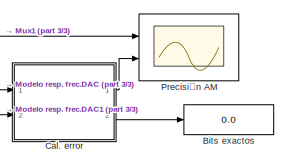
[diagram: root canvas - part 1/3, top right region]
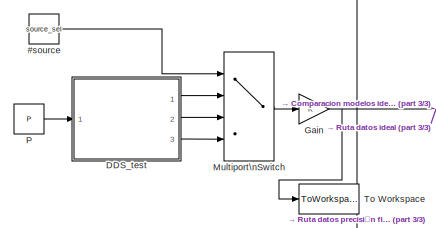
[diagram: root canvas - part 2/3, middle left region]
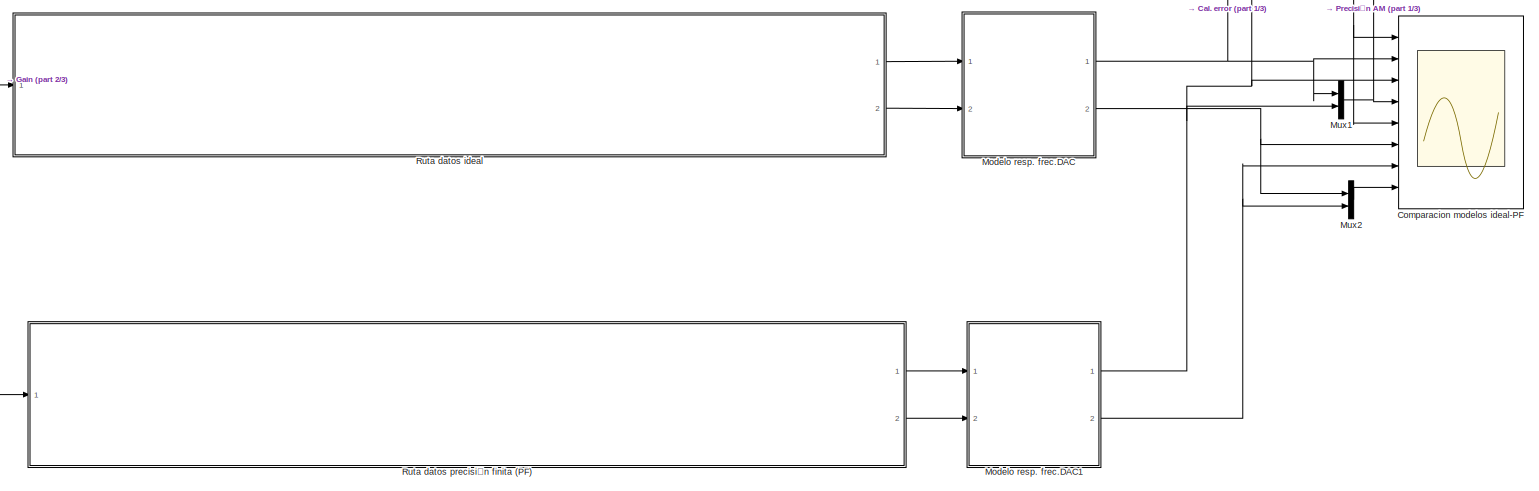
[diagram: root canvas - part 3/3, central region]
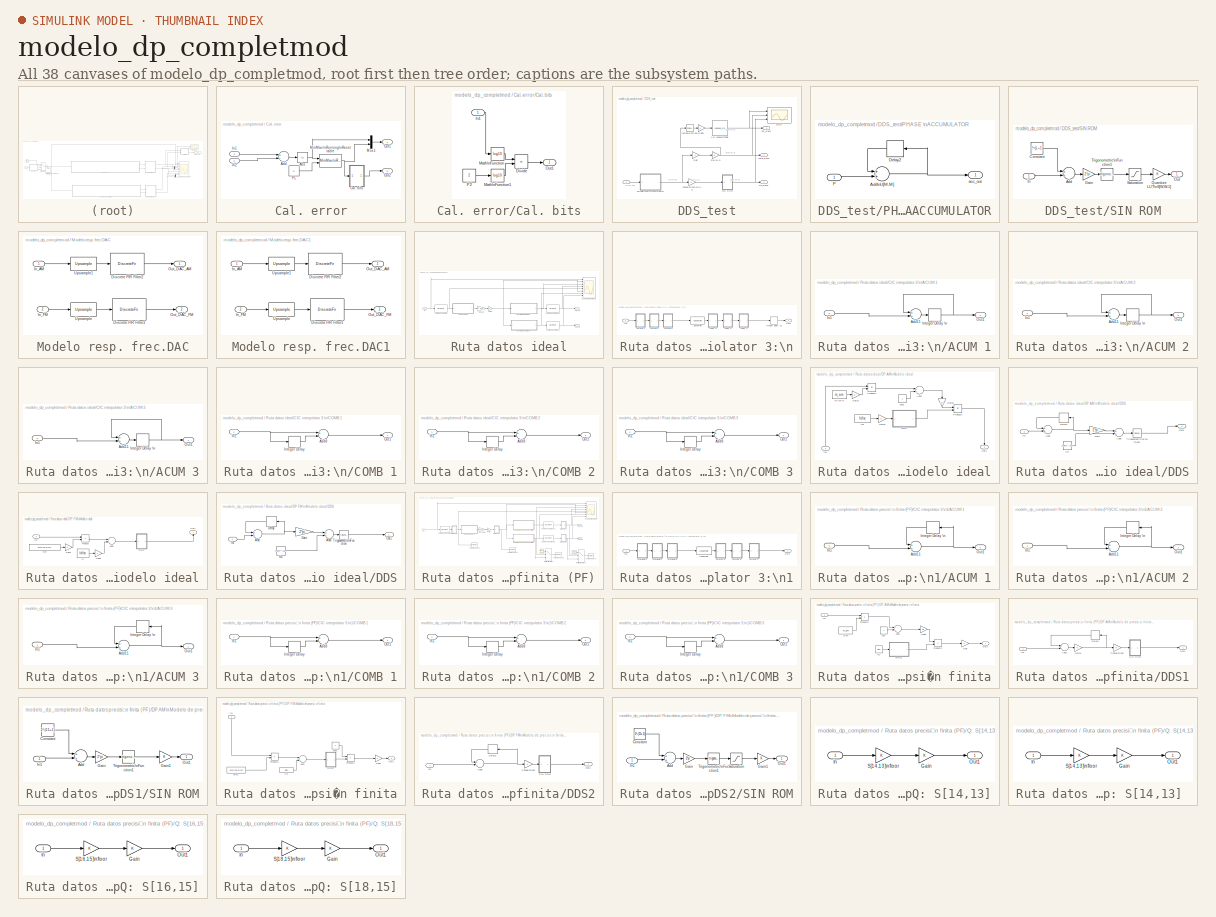
[diagram: thumbnail index - all 38 canvases of the model, root first then tree order]
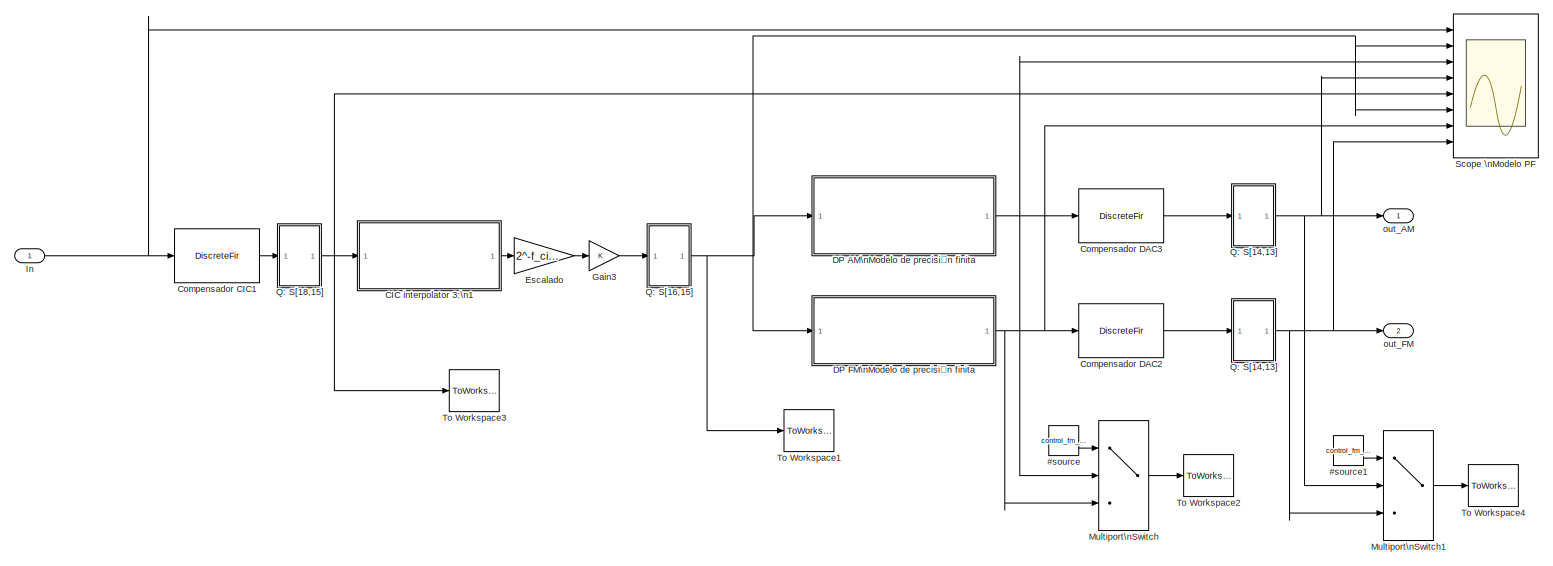
[diagram: Ruta datos precisi�n finita (PF) - part 1/1, most of the canvas]
MODEL modelo_dp_completmod
KIND model
BLOCK [Constant] #source
  SID = 841
  SampleTime = R/fsc
  Value = source_sel
BLOCK [Display] Bits exactos
  Decimation = 1
  Ports = [1]
  SID = 869
BLOCK [SubSystem] Cal. error
  Ports = [2, 2]
  RequestExecContextInheritance = off
  SID = 873
BLOCK [Abs] Cal. error/Abs
  SID = 861
  SaturateOnIntegerOverflow = off
BLOCK [Sum] Cal. error/Add
  InputSameDT = off
  Inputs = +-
  OutDataTypeStr = Inherit: Inherit via internal rule
  Ports = [2, 1]
  SID = 860
  SaturateOnIntegerOverflow = off
BLOCK [SubSystem] Cal. error/Cal. bits
  Ports = [1, 1]
  RequestExecContextInheritance = off
  SID = 870
BLOCK [Product] Cal. error/Cal. bits/Divide
  InputSameDT = off
  Inputs = */
  OutDataTypeStr = Inherit: Inherit via internal rule
  Ports = [2, 1]
  RndMeth = Floor
  SID = 868
  SaturateOnIntegerOverflow = off
BLOCK [Inport] Cal. error/Cal. bits/In1
  IconDisplay = Port number
  SID = 871
BLOCK [Math] Cal. error/Cal. bits/Math\nFunction
  Operator = log10
  Ports = [1, 1]
  SID = 865
BLOCK [Math] Cal. error/Cal. bits/Math\nFunction1
  Operator = log10
  Ports = [1, 1]
  SID = 866
BLOCK [Outport] Cal. error/Cal. bits/Out1
  IconDisplay = Port number
  SID = 872
BLOCK [Constant] Cal. error/Cal. bits/P2
  OutDataTypeStr = double
  SID = 867
  SampleTime = -1
  Value = 2
BLOCK [Inport] Cal. error/In1
  IconDisplay = Port number
  SID = 874
BLOCK [Inport] Cal. error/In2
  IconDisplay = Port number
  Port = 2
  SID = 875
BLOCK [Reference] Cal. error/MinMax\nRunning\nResettable  REF=simulink/Math\nOperations/MinMax\nRunning\nResettable
  Function = max
  Ports = [2, 1]
  SID = 863
  SourceBlock = simulink/Math\nOperations/MinMax\nRunning\nResettable
  SourceProductBaseCode = SL
  SourceProductName = Simulink
  SourceType = MinMax Running Resettable
  vinit = 0.0
BLOCK [Mux] Cal. error/Mux1
  DisplayOption = bar
  Inputs = 2
  Ports = [2, 1]
  SID = 878
BLOCK [Outport] Cal. error/Out1
  IconDisplay = Port number
  SID = 876
BLOCK [Outport] Cal. error/Out2
  IconDisplay = Port number
  Port = 2
  SID = 877
BLOCK [Constant] Cal. error/P1
  OutDataTypeStr = double
  SID = 864
  SampleTime = -1
  Value = 0
BLOCK [Scope] Comparacion modelos ideal-PF
  Floating = off
  NumInputPorts = 8
  Ports = [8]
  SID = 486
  ScopeSpecificationString = Simulink.scopes.TimeScopeBlockCfg('CurrentConfiguration', extmgr.ConfigurationSet(extmgr.Configuration('Core','General UI',true),extmgr.Configuration('Core','Source UI',true),extmgr.Configuration('Sources','WiredSimulink',true,'DataLoggingVariableName','ScopeData2','DataLoggingSaveFormat','Array','DataLoggingDecimation','1','DataLoggingDecimateData',true),extmgr.Configuration('Visuals','Time Domai...<+6592ch>
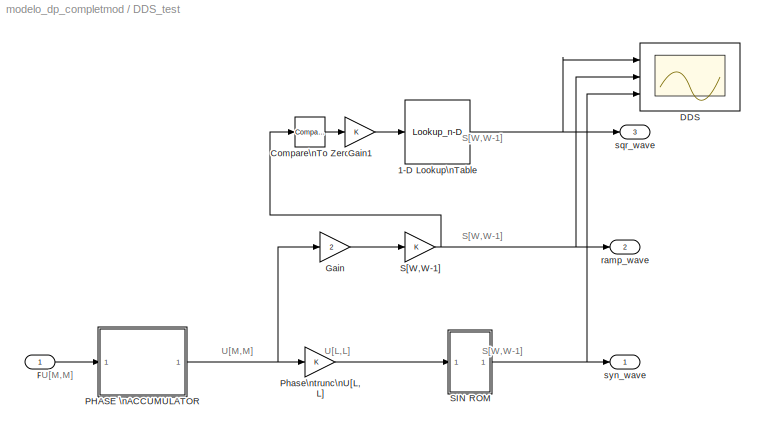
BLOCK [SubSystem] DDS_test
  Ports = [1, 3]
  RequestExecContextInheritance = off
  SID = 802
BLOCK [Lookup_n-D] DDS_test/1-D Lookup\nTable
  BreakpointsForDimension1 = [0:1]
  InternalRulePriority = Speed
  NumberOfTableDimensions = 1
  Ports = [1, 1]
  RndMeth = Simplest
  SID = 850
  Table = [ -1+2^-(W-1) 1-2^-(W-1)]
BLOCK [Reference] DDS_test/Compare\nTo Zero  REF=simulink/Logic and Bit\nOperations/Compare\nTo Zero
  OutDataTypeStr = boolean
  Ports = [1, 1]
  SID = 849
  SourceBlock = simulink/Logic and Bit\nOperations/Compare\nTo Zero
  SourceProductBaseCode = SL
  SourceProductName = Simulink
  SourceType = Compare To Zero
  ZeroCross = on
  relop = >=
BLOCK [Scope] DDS_test/DDS
  Floating = off
  NumInputPorts = 3
  Ports = [3]
  SID = 882
  ScopeSpecificationString = Simulink.scopes.TimeScopeBlockCfg('CurrentConfiguration', extmgr.ConfigurationSet(extmgr.Configuration('Core','General UI',true),extmgr.Configuration('Core','Source UI',true),extmgr.Configuration('Sources','WiredSimulink',true,'DataLoggingVariableName','ScopeData1'),extmgr.Configuration('Visuals','Time Domain',true,'SerializedDisplays',{struct('MinYLimReal','-1.24996','MaxYLimReal','1.24996','YLab...<+2753ch>
BLOCK [Gain] DDS_test/Gain
  Gain = 2
  OutDataTypeStr = double
  ParamDataTypeStr = Inherit: Inherit via internal rule
  SID = 804
  SaturateOnIntegerOverflow = off
BLOCK [Gain] DDS_test/Gain1
  OutDataTypeStr = double
  ParamDataTypeStr = Inherit: Inherit via internal rule
  SID = 851
  SaturateOnIntegerOverflow = off
BLOCK [Inport] DDS_test/P
  IconDisplay = Port number
  SID = 803
BLOCK [SubSystem] DDS_test/PHASE \nACCUMULATOR
  Ports = [1, 1]
  RequestExecContextInheritance = off
  SID = 805
BLOCK [Sum] DDS_test/PHASE \nACCUMULATOR/Add\nU[M,M]
  AccumDataTypeStr = fixdt(0,Macc,Macc)
  InputSameDT = off
  OutDataTypeStr = fixdt(0,24,24)
  Ports = [2, 1]
  RndMeth = Convergent
  SID = 807
  SaturateOnIntegerOverflow = off
BLOCK [Delay] DDS_test/PHASE \nACCUMULATOR/Delay2
  DelayLength = 1
  InputPortMap = u0
  Ports = [1, 1]
  SID = 808
  SampleTime = R/fsc
BLOCK [Inport] DDS_test/PHASE \nACCUMULATOR/P
  IconDisplay = Port number
  SID = 806
BLOCK [Outport] DDS_test/PHASE \nACCUMULATOR/acc_out
  IconDisplay = Port number
  SID = 809
BLOCK [Gain] DDS_test/Phase\ntrunc\nU[L,L]
  OutDataTypeStr = fixdt(0,L,L)
  ParamDataTypeStr = Inherit: Inherit via internal rule
  SID = 810
  SaturateOnIntegerOverflow = off
BLOCK [SubSystem] DDS_test/SIN ROM
  Ports = [1, 1]
  RequestExecContextInheritance = off
  SID = 812
BLOCK [Sum] DDS_test/SIN ROM/Add
  InputSameDT = off
  OutDataTypeStr = Inherit: Inherit via internal rule
  Ports = [2, 1]
  SID = 814
  SaturateOnIntegerOverflow = off
BLOCK [Constant] DDS_test/SIN ROM/Constant
  SID = 815
  SampleTime = R/fsc
  Value = 2^-(L+1)
BLOCK [Gain] DDS_test/SIN ROM/Gain
  Gain = 2*pi
  OutDataTypeStr = Inherit: Inherit via internal rule
  ParamDataTypeStr = Inherit: Inherit via internal rule
  SID = 816
  SaturateOnIntegerOverflow = off
BLOCK [Inport] DDS_test/SIN ROM/In
  IconDisplay = Port number
  SID = 813
BLOCK [Outport] DDS_test/SIN ROM/Out
  IconDisplay = Port number
  SID = 820
BLOCK [Gain] DDS_test/SIN ROM/Quantize LUT\nS[W,W-1]
  OutDataTypeStr = fixdt(1,W,W-1)
  ParamDataTypeStr = Inherit: Inherit via internal rule
  RndMeth = Round
  SID = 817
BLOCK [Saturate] DDS_test/SIN ROM/Saturation
  InputPortMap = u0
  LowerLimit = -(1-2^-(W-1))
  Ports = [1, 1]
  SID = 818
  UpperLimit = 1-2^-(W-1)
BLOCK [Trigonometry] DDS_test/SIN ROM/Trigonometric\nFunction1
  Ports = [1, 1]
  SID = 819
BLOCK [Gain] DDS_test/S[W,W-1]
  OutDataTypeStr = fixdt(1,W,W-1)
  ParamDataTypeStr = Inherit: Inherit via internal rule
  SID = 811
  SaturateOnIntegerOverflow = off
BLOCK [Outport] DDS_test/ramp_wave
  IconDisplay = Port number
  Port = 2
  SID = 824
BLOCK [Outport] DDS_test/sqr_wave
  IconDisplay = Port number
  Port = 3
  SID = 825
BLOCK [Outport] DDS_test/syn_wave
  IconDisplay = Port number
  SID = 823
BLOCK [Gain] Gain
  OutDataTypeStr = Inherit: Inherit via internal rule
  ParamDataTypeStr = Inherit: Inherit via internal rule
  SID = 879
  SaturateOnIntegerOverflow = off
BLOCK [SubSystem] Modelo resp. frec.DAC
  Ports = [2, 2]
  RequestExecContextInheritance = off
  SID = 663
BLOCK [DiscreteFir] Modelo resp. frec.DAC/Discrete FIR Filter1
  Coefficients = [1 1 1 1]
  InputPortMap = u0
  InputProcessing = Columns as channels (frame based)
  OutputPortMap = o0
  Ports = [1, 1]
  SID = 481
BLOCK [DiscreteFir] Modelo resp. frec.DAC/Discrete FIR Filter2
  Coefficients = [1 1 1 1]
  InputPortMap = u0
  InputProcessing = Columns as channels (frame based)
  OutputPortMap = o0
  Ports = [1, 1]
  SID = 482
BLOCK [Inport] Modelo resp. frec.DAC/In_AM
  IconDisplay = Port number
  SID = 664
BLOCK [Inport] Modelo resp. frec.DAC/In_FM
  IconDisplay = Port number
  Port = 2
  SID = 665
BLOCK [Outport] Modelo resp. frec.DAC/Out_DAC_AM
  IconDisplay = Port number
  SID = 666
BLOCK [Outport] Modelo resp. frec.DAC/Out_DAC_FM
  IconDisplay = Port number
  Port = 2
  SID = 688
BLOCK [Reference] Modelo resp. frec.DAC/Upsample  REF=dspsigops/Upsample
  InputProcessing = Columns as channels (frame based)
  MultiThreadCoSim = auto
  N = 4
  Ports = [1, 1]
  RateOptions = Allow multirate processing
  SID = 480
  SourceBlock = dspsigops/Upsample
  SourceProductBaseCode = DS
  SourceProductName = DSP System Toolbox
  SourceType = Upsample
  UserData = DataTag0
  UserDataPersistent = on
  ic = 0
  mode = Unused parameter value
  phase = 0
BLOCK [Reference] Modelo resp. frec.DAC/Upsample1  REF=dspsigops/Upsample
  InputProcessing = Columns as channels (frame based)
  MultiThreadCoSim = auto
  N = 4
  Ports = [1, 1]
  RateOptions = Allow multirate processing
  SID = 483
  SourceBlock = dspsigops/Upsample
  SourceProductBaseCode = DS
  SourceProductName = DSP System Toolbox
  SourceType = Upsample
  UserData = DataTag1
  UserDataPersistent = on
  ic = 0
  mode = Unused parameter value
  phase = 0
BLOCK [SubSystem] Modelo resp. frec.DAC1
  Ports = [2, 2]
  RequestExecContextInheritance = off
  SID = 689
BLOCK [DiscreteFir] Modelo resp. frec.DAC1/Discrete FIR Filter1
  Coefficients = [1 1 1 1]
  InputPortMap = u0
  InputProcessing = Columns as channels (frame based)
  OutputPortMap = o0
  Ports = [1, 1]
  SID = 692
BLOCK [DiscreteFir] Modelo resp. frec.DAC1/Discrete FIR Filter2
  Coefficients = [1 1 1 1]
  InputPortMap = u0
  InputProcessing = Columns as channels (frame based)
  OutputPortMap = o0
  Ports = [1, 1]
  SID = 693
BLOCK [Inport] Modelo resp. frec.DAC1/In_AM
  IconDisplay = Port number
  SID = 690
BLOCK [Inport] Modelo resp. frec.DAC1/In_FM
  IconDisplay = Port number
  Port = 2
  SID = 691
BLOCK [Outport] Modelo resp. frec.DAC1/Out_DAC_AM
  IconDisplay = Port number
  SID = 696
BLOCK [Outport] Modelo resp. frec.DAC1/Out_DAC_FM
  IconDisplay = Port number
  Port = 2
  SID = 697
BLOCK [Reference] Modelo resp. frec.DAC1/Upsample  REF=dspsigops/Upsample
  InputProcessing = Columns as channels (frame based)
  MultiThreadCoSim = auto
  N = 4
  Ports = [1, 1]
  RateOptions = Allow multirate processing
  SID = 694
  SourceBlock = dspsigops/Upsample
  SourceProductBaseCode = DS
  SourceProductName = DSP System Toolbox
  SourceType = Upsample
  UserData = DataTag2
  UserDataPersistent = on
  ic = 0
  mode = Unused parameter value
  phase = 0
BLOCK [Reference] Modelo resp. frec.DAC1/Upsample1  REF=dspsigops/Upsample
  InputProcessing = Columns as channels (frame based)
  MultiThreadCoSim = auto
  N = 4
  Ports = [1, 1]
  RateOptions = Allow multirate processing
  SID = 695
  SourceBlock = dspsigops/Upsample
  SourceProductBaseCode = DS
  SourceProductName = DSP System Toolbox
  SourceType = Upsample
  UserData = DataTag3
  UserDataPersistent = on
  ic = 0
  mode = Unused parameter value
  phase = 0
BLOCK [MultiPortSwitch] Multiport\nSwitch
  DataPortIndices = {0,1,2}
  DataPortOrder = Specify indices
  InputSameDT = off
  OutDataTypeStr = double
  Ports = [4, 1]
  SID = 840
  SaturateOnIntegerOverflow = off
BLOCK [Mux] Mux1
  DisplayOption = bar
  Inputs = 2
  Ports = [2, 1]
  SID = 660
BLOCK [Mux] Mux2
  DisplayOption = bar
  Inputs = 2
  Ports = [2, 1]
  SID = 655
BLOCK [Constant] P
  OutDataTypeStr = fixdt(0,Macc,Macc)
  SID = 832
  SampleTime = R/fsc
  Value = P
BLOCK [Scope] Precisión AM
  Floating = off
  NumInputPorts = 2
  Ports = [2]
  SID = 855
  ScopeSpecificationString = Simulink.scopes.TimeScopeBlockCfg('CurrentConfiguration', extmgr.ConfigurationSet(extmgr.Configuration('Core','General UI',true),extmgr.Configuration('Core','Source UI',true),extmgr.Configuration('Sources','WiredSimulink',true,'DataLoggingVariableName','ScopeData1'),extmgr.Configuration('Visuals','Time Domain',true,'SerializedDisplays',{struct('MinYLimReal','-0.85616','MaxYLimReal','0.85606','YLab...<+2109ch>
BLOCK [SubSystem] Ruta datos ideal
  Ports = [1, 2]
  RequestExecContextInheritance = off
  SID = 678
BLOCK [SubSystem] Ruta datos ideal/CIC interpolator 3:\n
  Ports = [1, 1]
  RequestExecContextInheritance = off
  SID = 247
BLOCK [Delay] Ruta datos ideal/CIC interpolator 3:\n/   Integer Delay  \n1
  DelayLength = 1
  InputPortMap = u0
  InputProcessing = Inherited
  Ports = [1, 1]
  SID = 365
  UserData = DataTag4
  UserDataPersistent = on
BLOCK [SubSystem] Ruta datos ideal/CIC interpolator 3:\n/ACUM 1
  Ports = [1, 1]
  RequestExecContextInheritance = off
  SID = 377
BLOCK [Delay] Ruta datos ideal/CIC interpolator 3:\n/ACUM 1/   Integer Delay  \n
  DelayLength = 1
  InputPortMap = u0
  InputProcessing = Inherited
  Ports = [1, 1]
  SID = 249
  UserData = DataTag5
  UserDataPersistent = on
BLOCK [Sum] Ruta datos ideal/CIC interpolator 3:\n/ACUM 1/Add11
  InputSameDT = off
  OutDataTypeStr = Inherit: Inherit via internal rule
  Ports = [2, 1]
  SID = 250
  SaturateOnIntegerOverflow = off
BLOCK [Inport] Ruta datos ideal/CIC interpolator 3:\n/ACUM 1/In1
  IconDisplay = Port number
  SID = 378
BLOCK [Outport] Ruta datos ideal/CIC interpolator 3:\n/ACUM 1/Out1
  IconDisplay = Port number
  SID = 379
BLOCK [SubSystem] Ruta datos ideal/CIC interpolator 3:\n/ACUM 2
  Ports = [1, 1]
  RequestExecContextInheritance = off
  SID = 380
BLOCK [Delay] Ruta datos ideal/CIC interpolator 3:\n/ACUM 2/   Integer Delay  \n
  DelayLength = 1
  InputPortMap = u0
  InputProcessing = Inherited
  Ports = [1, 1]
  SID = 382
  UserData = DataTag6
  UserDataPersistent = on
BLOCK [Sum] Ruta datos ideal/CIC interpolator 3:\n/ACUM 2/Add11
  InputSameDT = off
  OutDataTypeStr = Inherit: Inherit via internal rule
  Ports = [2, 1]
  SID = 383
  SaturateOnIntegerOverflow = off
BLOCK [Inport] Ruta datos ideal/CIC interpolator 3:\n/ACUM 2/In1
  IconDisplay = Port number
  SID = 381
BLOCK [Outport] Ruta datos ideal/CIC interpolator 3:\n/ACUM 2/Out1
  IconDisplay = Port number
  SID = 384
BLOCK [SubSystem] Ruta datos ideal/CIC interpolator 3:\n/ACUM 3
  Ports = [1, 1]
  RequestExecContextInheritance = off
  SID = 393
BLOCK [Delay] Ruta datos ideal/CIC interpolator 3:\n/ACUM 3/   Integer Delay  \n
  DelayLength = 1
  InputPortMap = u0
  InputProcessing = Inherited
  Ports = [1, 1]
  SID = 395
  UserData = DataTag7
  UserDataPersistent = on
BLOCK [Sum] Ruta datos ideal/CIC interpolator 3:\n/ACUM 3/Add11
  InputSameDT = off
  OutDataTypeStr = Inherit: Inherit via internal rule
  Ports = [2, 1]
  SID = 396
  SaturateOnIntegerOverflow = off
BLOCK [Inport] Ruta datos ideal/CIC interpolator 3:\n/ACUM 3/In1
  IconDisplay = Port number
  SID = 394
BLOCK [Outport] Ruta datos ideal/CIC interpolator 3:\n/ACUM 3/Out1
  IconDisplay = Port number
  SID = 397
BLOCK [SubSystem] Ruta datos ideal/CIC interpolator 3:\n/COMB 1
  Ports = [1, 1]
  RequestExecContextInheritance = off
  SID = 369
BLOCK [Sum] Ruta datos ideal/CIC interpolator 3:\n/COMB 1/Add8
  InputSameDT = off
  Inputs = +-
  OutDataTypeStr = Inherit: Inherit via internal rule
  Ports = [2, 1]
  SID = 251
  SaturateOnIntegerOverflow = off
BLOCK [Inport] Ruta datos ideal/CIC interpolator 3:\n/COMB 1/In1
  IconDisplay = Port number
  SID = 370
BLOCK [Delay] Ruta datos ideal/CIC interpolator 3:\n/COMB 1/Integer Delay 
  DelayLength = 1
  InputPortMap = u0
  InputProcessing = Inherited
  Ports = [1, 1]
  SID = 252
  UserData = DataTag8
  UserDataPersistent = on
BLOCK [Outport] Ruta datos ideal/CIC interpolator 3:\n/COMB 1/Out1
  IconDisplay = Port number
  SID = 371
BLOCK [SubSystem] Ruta datos ideal/CIC interpolator 3:\n/COMB 2
  Ports = [1, 1]
  RequestExecContextInheritance = off
  SID = 372
BLOCK [Sum] Ruta datos ideal/CIC interpolator 3:\n/COMB 2/Add8
  InputSameDT = off
  Inputs = +-
  OutDataTypeStr = Inherit: Inherit via internal rule
  Ports = [2, 1]
  SID = 374
  SaturateOnIntegerOverflow = off
BLOCK [Inport] Ruta datos ideal/CIC interpolator 3:\n/COMB 2/In1
  IconDisplay = Port number
  SID = 373
BLOCK [Delay] Ruta datos ideal/CIC interpolator 3:\n/COMB 2/Integer Delay 
  DelayLength = 1
  InputPortMap = u0
  InputProcessing = Inherited
  Ports = [1, 1]
  SID = 375
  UserData = DataTag9
  UserDataPersistent = on
BLOCK [Outport] Ruta datos ideal/CIC interpolator 3:\n/COMB 2/Out1
  IconDisplay = Port number
  SID = 376
BLOCK [SubSystem] Ruta datos ideal/CIC interpolator 3:\n/COMB 3
  Ports = [1, 1]
  RequestExecContextInheritance = off
  SID = 388
BLOCK [Sum] Ruta datos ideal/CIC interpolator 3:\n/COMB 3/Add8
  InputSameDT = off
  Inputs = +-
  OutDataTypeStr = Inherit: Inherit via internal rule
  Ports = [2, 1]
  SID = 390
  SaturateOnIntegerOverflow = off
BLOCK [Inport] Ruta datos ideal/CIC interpolator 3:\n/COMB 3/In1
  IconDisplay = Port number
  SID = 389
BLOCK [Delay] Ruta datos ideal/CIC interpolator 3:\n/COMB 3/Integer Delay 
  DelayLength = 1
  InputPortMap = u0
  InputProcessing = Inherited
  Ports = [1, 1]
  SID = 391
  UserData = DataTag10
  UserDataPersistent = on
BLOCK [Outport] Ruta datos ideal/CIC interpolator 3:\n/COMB 3/Out1
  IconDisplay = Port number
  SID = 392
BLOCK [Inport] Ruta datos ideal/CIC interpolator 3:\n/In1
  IconDisplay = Port number
  SID = 248
BLOCK [Outport] Ruta datos ideal/CIC interpolator 3:\n/Out1
  IconDisplay = Port number
  SID = 255
BLOCK [Reference] Ruta datos ideal/CIC interpolator 3:\n/Upsample  REF=dspsigops/Upsample
  InputProcessing = Columns as channels (frame based)
  MultiThreadCoSim = auto
  N = R
  Ports = [1, 1]
  RateOptions = Allow multirate processing
  SID = 385
  SourceBlock = dspsigops/Upsample
  SourceProductBaseCode = DS
  SourceProductName = DSP System Toolbox
  SourceType = Upsample
  UserData = DataTag11
  UserDataPersistent = on
  ic = 0
  mode = Unused parameter value
  phase = 0
BLOCK [DiscreteFir] Ruta datos ideal/Compensador CIC
  Coefficients = h_comp_cic
  InputPortMap = u0
  InputProcessing = Columns as channels (frame based)
  OutputPortMap = o0
  Ports = [1, 1]
  SID = 478
BLOCK [DiscreteFir] Ruta datos ideal/Compensador DAC
  Coefficients = h_comp_DAC
  InputPortMap = u0
  InputProcessing = Columns as channels (frame based)
  OutputPortMap = o0
  Ports = [1, 1]
  SID = 484
BLOCK [DiscreteFir] Ruta datos ideal/Compensador DAC1
  Coefficients = h_comp_DAC
  InputPortMap = u0
  InputProcessing = Columns as channels (frame based)
  OutputPortMap = o0
  Ports = [1, 1]
  SID = 514
BLOCK [SubSystem] Ruta datos ideal/DP AM\nModelo ideal
  Ports = [1, 1]
  RequestExecContextInheritance = off
  SID = 628
BLOCK [Sum] Ruta datos ideal/DP AM\nModelo ideal/Add4
  InputSameDT = off
  OutDataTypeStr = Inherit: Inherit via internal rule
  Ports = [2, 1]
  SID = 630
  SaturateOnIntegerOverflow = off
BLOCK [SubSystem] Ruta datos ideal/DP AM\nModelo ideal/DDS
  Ports = [1, 1]
  RequestExecContextInheritance = off
  SID = 631
BLOCK [Sum] Ruta datos ideal/DP AM\nModelo ideal/DDS/Add1
  InputSameDT = off
  OutDataTypeStr = Inherit: Inherit via internal rule
  Ports = [2, 1]
  SID = 633
  SaturateOnIntegerOverflow = off
BLOCK [Sum] Ruta datos ideal/DP AM\nModelo ideal/DDS/Add6
  InputSameDT = off
  OutDataTypeStr = Inherit: Inherit via internal rule
  Ports = [2, 1]
  SID = 634
  SaturateOnIntegerOverflow = off
BLOCK [Delay] Ruta datos ideal/DP AM\nModelo ideal/DDS/Delay1
  DelayLength = 1
  InputPortMap = u0
  Ports = [1, 1]
  SID = 635
BLOCK [Gain] Ruta datos ideal/DP AM\nModelo ideal/DDS/Gain
  Gain = 2*pi
  OutDataTypeStr = Inherit: Inherit via internal rule
  ParamDataTypeStr = Inherit: Inherit via internal rule
  SID = 783
  SaturateOnIntegerOverflow = off
BLOCK [Inport] Ruta datos ideal/DP AM\nModelo ideal/DDS/In1
  IconDisplay = Port number
  SID = 632
BLOCK [Outport] Ruta datos ideal/DP AM\nModelo ideal/DDS/Out1
  IconDisplay = Port number
  SID = 639
BLOCK [Trigonometry] Ruta datos ideal/DP AM\nModelo ideal/DDS/Trigonometric\nFunction1
  Ports = [1, 1]
  SID = 637
BLOCK [Constant] Ruta datos ideal/DP AM\nModelo ideal/DDS/fc4
  SID = 638
  Value = 2*pi*2^-(15+1)
BLOCK [Gain] Ruta datos ideal/DP AM\nModelo ideal/Gain1
  OutDataTypeStr = double
  ParamDataTypeStr = Inherit: Inherit via internal rule
  SID = 856
  SaturateOnIntegerOverflow = off
BLOCK [Gain] Ruta datos ideal/DP AM\nModelo ideal/Gain2
  OutDataTypeStr = double
  ParamDataTypeStr = Inherit: Inherit via internal rule
  SID = 857
  SaturateOnIntegerOverflow = off
BLOCK [Gain] Ruta datos ideal/DP AM\nModelo ideal/Gain3
  Gain = 1/2
  OutDataTypeStr = double
  ParamDataTypeStr = Inherit: Inherit via internal rule
  SID = 642
  SaturateOnIntegerOverflow = off
BLOCK [Inport] Ruta datos ideal/DP AM\nModelo ideal/In1
  IconDisplay = Port number
  SID = 629
BLOCK [Outport] Ruta datos ideal/DP AM\nModelo ideal/Out1
  IconDisplay = Port number
  SID = 648
BLOCK [Product] Ruta datos ideal/DP AM\nModelo ideal/Product1
  InputSameDT = off
  OutDataTypeStr = Inherit: Inherit via internal rule
  Ports = [2, 1]
  RndMeth = Floor
  SID = 643
  SaturateOnIntegerOverflow = off
BLOCK [Product] Ruta datos ideal/DP AM\nModelo ideal/Product4
  InputSameDT = off
  OutDataTypeStr = Inherit: Inherit via internal rule
  Ports = [2, 1]
  RndMeth = Floor
  SID = 644
  SaturateOnIntegerOverflow = off
BLOCK [Constant] Ruta datos ideal/DP AM\nModelo ideal/fc2
  OutDataTypeStr = fixdt(0,24,24)
  SID = 645
  Value = fc/fsc
BLOCK [Constant] Ruta datos ideal/DP AM\nModelo ideal/mAMi\n
  OutDataTypeStr = fixdt(0,16,15)
  SID = 646
  Value = m_am
BLOCK [Constant] Ruta datos ideal/DP AM\nModelo ideal/uno1
  SID = 647
BLOCK [SubSystem] Ruta datos ideal/DP FM\nModelo ideal
  Ports = [1, 1]
  RequestExecContextInheritance = off
  SID = 610
BLOCK [Sum] Ruta datos ideal/DP FM\nModelo ideal/Add5
  InputSameDT = off
  OutDataTypeStr = Inherit: Inherit via internal rule
  Ports = [2, 1]
  SID = 612
  SaturateOnIntegerOverflow = off
BLOCK [SubSystem] Ruta datos ideal/DP FM\nModelo ideal/DDS
  Ports = [1, 1]
  RequestExecContextInheritance = off
  SID = 613
BLOCK [Sum] Ruta datos ideal/DP FM\nModelo ideal/DDS/Add
  InputSameDT = off
  OutDataTypeStr = Inherit: Inherit via internal rule
  Ports = [2, 1]
  SID = 615
  SaturateOnIntegerOverflow = off
BLOCK [Sum] Ruta datos ideal/DP FM\nModelo ideal/DDS/Add7
  InputSameDT = off
  OutDataTypeStr = Inherit: Inherit via internal rule
  Ports = [2, 1]
  SID = 616
  SaturateOnIntegerOverflow = off
BLOCK [Delay] Ruta datos ideal/DP FM\nModelo ideal/DDS/Delay
  DelayLength = 1
  InputPortMap = u0
  Ports = [1, 1]
  SID = 617
BLOCK [Gain] Ruta datos ideal/DP FM\nModelo ideal/DDS/Gain
  Gain = 2*pi
  OutDataTypeStr = Inherit: Inherit via internal rule
  ParamDataTypeStr = Inherit: Inherit via internal rule
  SID = 784
  SaturateOnIntegerOverflow = off
BLOCK [Inport] Ruta datos ideal/DP FM\nModelo ideal/DDS/In1
  IconDisplay = Port number
  SID = 614
BLOCK [Outport] Ruta datos ideal/DP FM\nModelo ideal/DDS/Out1
  IconDisplay = Port number
  SID = 621
BLOCK [Trigonometry] Ruta datos ideal/DP FM\nModelo ideal/DDS/Trigonometric\nFunction
  Ports = [1, 1]
  SID = 619
BLOCK [Constant] Ruta datos ideal/DP FM\nModelo ideal/DDS/fc5
  SID = 620
  Value = 2*pi*2^-(15+1)
BLOCK [Gain] Ruta datos ideal/DP FM\nModelo ideal/Gain1
  OutDataTypeStr = double
  ParamDataTypeStr = Inherit: Inherit via internal rule
  SID = 858
  SaturateOnIntegerOverflow = off
BLOCK [Gain] Ruta datos ideal/DP FM\nModelo ideal/Gain2
  OutDataTypeStr = double
  ParamDataTypeStr = Inherit: Inherit via internal rule
  SID = 859
  SaturateOnIntegerOverflow = off
BLOCK [Inport] Ruta datos ideal/DP FM\nModelo ideal/In1
  IconDisplay = Port number
  SID = 611
BLOCK [Constant] Ruta datos ideal/DP FM\nModelo ideal/Kfm
  OutDataTypeStr = fixdt(0,16,16)
  SID = 624
  Value = Kfm*1e-3/fsc
BLOCK [Outport] Ruta datos ideal/DP FM\nModelo ideal/Out1
  IconDisplay = Port number
  SID = 627
BLOCK [Product] Ruta datos ideal/DP FM\nModelo ideal/Product
  InputSameDT = off
  OutDataTypeStr = Inherit: Inherit via internal rule
  Ports = [2, 1]
  RndMeth = Floor
  SID = 625
  SaturateOnIntegerOverflow = off
BLOCK [Constant] Ruta datos ideal/DP FM\nModelo ideal/fc
  OutDataTypeStr = fixdt(0,24,24)
  SID = 626
  Value = fc/fsc
BLOCK [Gain] Ruta datos ideal/Gain1
  OutDataTypeStr = double
  ParamDataTypeStr = Inherit: Inherit via internal rule
  SID = 257
  SaturateOnIntegerOverflow = off
BLOCK [Inport] Ruta datos ideal/In
  IconDisplay = Port number
  SID = 680
BLOCK [Gain] Ruta datos ideal/S[16,15] 
  Gain = 2^-f_cic_scale
  OutDataTypeStr = double
  ParamDataTypeStr = Inherit: Inherit via internal rule
  SID = 256
  SaturateOnIntegerOverflow = off
BLOCK [Scope] Ruta datos ideal/Scope \nModelo ideal
  Floating = off
  NumInputPorts = 8
  Ports = [8]
  SID = 368
  ScopeSpecificationString = Simulink.scopes.TimeScopeBlockCfg('CurrentConfiguration', extmgr.ConfigurationSet(extmgr.Configuration('Core','General UI',true),extmgr.Configuration('Core','Source UI',true),extmgr.Configuration('Sources','WiredSimulink',true,'DataLoggingSaveFormat','Array','DataLoggingDecimation','1','DataLoggingDecimateData',true),extmgr.Configuration('Visuals','Time Domain',true,'SerializedDisplays',{struct('M...<+6531ch>
BLOCK [Outport] Ruta datos ideal/out_AM
  IconDisplay = Port number
  SID = 681
BLOCK [Outport] Ruta datos ideal/out_FM
  IconDisplay = Port number
  Port = 2
  SID = 682
BLOCK [SubSystem] Ruta datos precisión finita (PF)
  Ports = [1, 2]
  RequestExecContextInheritance = off
  SID = 683
BLOCK [Constant] Ruta datos precisión finita (PF)/#source
  SID = 847
  SampleTime = 1/fsc
  Value = control_fm_am
BLOCK [Constant] Ruta datos precisión finita (PF)/#source1
  SID = 852
  SampleTime = 1/fsc
  Value = control_fm_am
BLOCK [SubSystem] Ruta datos precisión finita (PF)/CIC interpolator 3:\n1
  Ports = [1, 1]
  RequestExecContextInheritance = off
  SID = 515
BLOCK [SubSystem] Ruta datos precisión finita (PF)/CIC interpolator 3:\n1/ACUM 1
  Ports = [1, 1]
  RequestExecContextInheritance = off
  SID = 518
BLOCK [Delay] Ruta datos precisión finita (PF)/CIC interpolator 3:\n1/ACUM 1/   Integer Delay  \n
  DelayLength = 1
  InputPortMap = u0
  InputProcessing = Inherited
  Ports = [1, 1]
  SID = 520
  UserData = DataTag12
  UserDataPersistent = on
BLOCK [Sum] Ruta datos precisión finita (PF)/CIC interpolator 3:\n1/ACUM 1/Add11
  InputSameDT = off
  OutDataTypeStr = Inherit: Inherit via internal rule
  Ports = [2, 1]
  SID = 521
  SaturateOnIntegerOverflow = off
BLOCK [Inport] Ruta datos precisión finita (PF)/CIC interpolator 3:\n1/ACUM 1/In1
  IconDisplay = Port number
  SID = 519
BLOCK [Outport] Ruta datos precisión finita (PF)/CIC interpolator 3:\n1/ACUM 1/Out1
  IconDisplay = Port number
  SID = 522
BLOCK [SubSystem] Ruta datos precisión finita (PF)/CIC interpolator 3:\n1/ACUM 2
  Ports = [1, 1]
  RequestExecContextInheritance = off
  SID = 523
BLOCK [Delay] Ruta datos precisión finita (PF)/CIC interpolator 3:\n1/ACUM 2/   Integer Delay  \n
  DelayLength = 1
  InputPortMap = u0
  InputProcessing = Inherited
  Ports = [1, 1]
  SID = 525
  UserData = DataTag13
  UserDataPersistent = on
BLOCK [Sum] Ruta datos precisión finita (PF)/CIC interpolator 3:\n1/ACUM 2/Add11
  InputSameDT = off
  OutDataTypeStr = Inherit: Inherit via internal rule
  Ports = [2, 1]
  SID = 526
  SaturateOnIntegerOverflow = off
BLOCK [Inport] Ruta datos precisión finita (PF)/CIC interpolator 3:\n1/ACUM 2/In1
  IconDisplay = Port number
  SID = 524
BLOCK [Outport] Ruta datos precisión finita (PF)/CIC interpolator 3:\n1/ACUM 2/Out1
  IconDisplay = Port number
  SID = 527
BLOCK [SubSystem] Ruta datos precisión finita (PF)/CIC interpolator 3:\n1/ACUM 3
  Ports = [1, 1]
  RequestExecContextInheritance = off
  SID = 528
BLOCK [Delay] Ruta datos precisión finita (PF)/CIC interpolator 3:\n1/ACUM 3/   Integer Delay  \n
  DelayLength = 1
  InputPortMap = u0
  InputProcessing = Inherited
  Ports = [1, 1]
  SID = 530
  UserData = DataTag14
  UserDataPersistent = on
BLOCK [Sum] Ruta datos precisión finita (PF)/CIC interpolator 3:\n1/ACUM 3/Add11
  InputSameDT = off
  OutDataTypeStr = Inherit: Inherit via internal rule
  Ports = [2, 1]
  SID = 531
  SaturateOnIntegerOverflow = off
BLOCK [Inport] Ruta datos precisión finita (PF)/CIC interpolator 3:\n1/ACUM 3/In1
  IconDisplay = Port number
  SID = 529
BLOCK [Outport] Ruta datos precisión finita (PF)/CIC interpolator 3:\n1/ACUM 3/Out1
  IconDisplay = Port number
  SID = 532
BLOCK [SubSystem] Ruta datos precisión finita (PF)/CIC interpolator 3:\n1/COMB 1
  Ports = [1, 1]
  RequestExecContextInheritance = off
  SID = 533
BLOCK [Sum] Ruta datos precisión finita (PF)/CIC interpolator 3:\n1/COMB 1/Add8
  InputSameDT = off
  Inputs = +-
  OutDataTypeStr = Inherit: Inherit via internal rule
  Ports = [2, 1]
  SID = 535
  SaturateOnIntegerOverflow = off
BLOCK [Inport] Ruta datos precisión finita (PF)/CIC interpolator 3:\n1/COMB 1/In1
  IconDisplay = Port number
  SID = 534
BLOCK [Delay] Ruta datos precisión finita (PF)/CIC interpolator 3:\n1/COMB 1/Integer Delay 
  DelayLength = 1
  InputPortMap = u0
  InputProcessing = Inherited
  Ports = [1, 1]
  SID = 536
  UserData = DataTag15
  UserDataPersistent = on
BLOCK [Outport] Ruta datos precisión finita (PF)/CIC interpolator 3:\n1/COMB 1/Out1
  IconDisplay = Port number
  SID = 537
BLOCK [SubSystem] Ruta datos precisión finita (PF)/CIC interpolator 3:\n1/COMB 2
  Ports = [1, 1]
  RequestExecContextInheritance = off
  SID = 538
BLOCK [Sum] Ruta datos precisión finita (PF)/CIC interpolator 3:\n1/COMB 2/Add8
  InputSameDT = off
  Inputs = +-
  OutDataTypeStr = Inherit: Inherit via internal rule
  Ports = [2, 1]
  SID = 540
  SaturateOnIntegerOverflow = off
BLOCK [Inport] Ruta datos precisión finita (PF)/CIC interpolator 3:\n1/COMB 2/In1
  IconDisplay = Port number
  SID = 539
BLOCK [Delay] Ruta datos precisión finita (PF)/CIC interpolator 3:\n1/COMB 2/Integer Delay 
  DelayLength = 1
  InputPortMap = u0
  InputProcessing = Inherited
  Ports = [1, 1]
  SID = 541
  UserData = DataTag16
  UserDataPersistent = on
BLOCK [Outport] Ruta datos precisión finita (PF)/CIC interpolator 3:\n1/COMB 2/Out1
  IconDisplay = Port number
  SID = 542
BLOCK [SubSystem] Ruta datos precisión finita (PF)/CIC interpolator 3:\n1/COMB 3
  Ports = [1, 1]
  RequestExecContextInheritance = off
  SID = 543
BLOCK [Sum] Ruta datos precisión finita (PF)/CIC interpolator 3:\n1/COMB 3/Add8
  InputSameDT = off
  Inputs = +-
  OutDataTypeStr = Inherit: Inherit via internal rule
  Ports = [2, 1]
  SID = 545
  SaturateOnIntegerOverflow = off
BLOCK [Inport] Ruta datos precisión finita (PF)/CIC interpolator 3:\n1/COMB 3/In1
  IconDisplay = Port number
  SID = 544
BLOCK [Delay] Ruta datos precisión finita (PF)/CIC interpolator 3:\n1/COMB 3/Integer Delay 
  DelayLength = 1
  InputPortMap = u0
  InputProcessing = Inherited
  Ports = [1, 1]
  SID = 546
  UserData = DataTag17
  UserDataPersistent = on
BLOCK [Outport] Ruta datos precisión finita (PF)/CIC interpolator 3:\n1/COMB 3/Out1
  IconDisplay = Port number
  SID = 547
BLOCK [Inport] Ruta datos precisión finita (PF)/CIC interpolator 3:\n1/In1
  IconDisplay = Port number
  SID = 516
BLOCK [Outport] Ruta datos precisión finita (PF)/CIC interpolator 3:\n1/Out1
  IconDisplay = Port number
  SID = 549
BLOCK [Reference] Ruta datos precisión finita (PF)/CIC interpolator 3:\n1/Upsample  REF=dspsigops/Upsample
  InputProcessing = Columns as channels (frame based)
  MultiThreadCoSim = auto
  N = R
  Ports = [1, 1]
  RateOptions = Allow multirate processing
  SID = 548
  SourceBlock = dspsigops/Upsample
  SourceProductBaseCode = DS
  SourceProductName = DSP System Toolbox
  SourceType = Upsample
  UserData = DataTag18
  UserDataPersistent = on
  ic = 0
  mode = Unused parameter value
  phase = 0
BLOCK [DiscreteFir] Ruta datos precisión finita (PF)/Compensador CIC1
  Coefficients = h_comp_cic
  InputPortMap = u0
  InputProcessing = Columns as channels (frame based)
  OutputPortMap = o0
  Ports = [1, 1]
  SID = 550
BLOCK [DiscreteFir] Ruta datos precisión finita (PF)/Compensador DAC2
  Coefficients = h_comp_DAC
  InputPortMap = u0
  InputProcessing = Columns as channels (frame based)
  OutputPortMap = o0
  Ports = [1, 1]
  SID = 649
BLOCK [DiscreteFir] Ruta datos precisión finita (PF)/Compensador DAC3
  Coefficients = h_comp_DAC
  InputPortMap = u0
  InputProcessing = Columns as channels (frame based)
  OutputPortMap = o0
  Ports = [1, 1]
  SID = 650
BLOCK [SubSystem] Ruta datos precisión finita (PF)/DP AM\nModelo de precisión finita
  Ports = [1, 1]
  RequestExecContextInheritance = off
  SID = 553
BLOCK [Sum] Ruta datos precisión finita (PF)/DP AM\nModelo de precisión finita/Add3
  AccumDataTypeStr = fixdt(1,17,15)
  InputSameDT = off
  OutDataTypeStr = Inherit: Inherit via internal rule
  Ports = [2, 1]
  SID = 555
  SaturateOnIntegerOverflow = off
BLOCK [SubSystem] Ruta datos precisión finita (PF)/DP AM\nModelo de precisión finita/DDS1
  Ports = [1, 1]
  RequestExecContextInheritance = off
  SID = 556
BLOCK [Sum] Ruta datos precisión finita (PF)/DP AM\nModelo de precisión finita/DDS1/Add2
  AccumDataTypeStr = fixdt(0,24,24)
  InputSameDT = off
  OutDataTypeStr = fixdt(0,24,24)
  Ports = [2, 1]
  RndMeth = Convergent
  SID = 558
  SaturateOnIntegerOverflow = off
BLOCK [Delay] Ruta datos precisión finita (PF)/DP AM\nModelo de precisión finita/DDS1/Delay4
  DelayLength = 1
  InputPortMap = u0
  Ports = [1, 1]
  SID = 560
BLOCK [Gain] Ruta datos precisión finita (PF)/DP AM\nModelo de precisión finita/DDS1/Gain1
  OutDataTypeStr = double
  ParamDataTypeStr = Inherit: Inherit via internal rule
  SID = 561
  SaturateOnIntegerOverflow = off
BLOCK [Inport] Ruta datos precisión finita (PF)/DP AM\nModelo de precisión finita/DDS1/In1
  IconDisplay = Port number
  SID = 557
BLOCK [Outport] Ruta datos precisión finita (PF)/DP AM\nModelo de precisión finita/DDS1/Out1
  IconDisplay = Port number
  SID = 571
BLOCK [Gain] Ruta datos precisión finita (PF)/DP AM\nModelo de precisión finita/DDS1/Phase\ntrunc
  OutDataTypeStr = fixdt(0,15,15)
  ParamDataTypeStr = Inherit: Inherit via internal rule
  SID = 562
  SaturateOnIntegerOverflow = off
BLOCK [SubSystem] Ruta datos precisión finita (PF)/DP AM\nModelo de precisión finita/DDS1/SIN ROM
  Ports = [1, 1]
  RequestExecContextInheritance = off
  SID = 563
BLOCK [Sum] Ruta datos precisión finita (PF)/DP AM\nModelo de precisión finita/DDS1/SIN ROM/Add
  InputSameDT = off
  OutDataTypeStr = Inherit: Inherit via internal rule
  Ports = [2, 1]
  SID = 565
  SaturateOnIntegerOverflow = off
BLOCK [Constant] Ruta datos precisión finita (PF)/DP AM\nModelo de precisión finita/DDS1/SIN ROM/Constant
  SID = 566
  Value = 2^-(15+1)
BLOCK [Gain] Ruta datos precisión finita (PF)/DP AM\nModelo de precisión finita/DDS1/SIN ROM/Gain
  Gain = 2*pi
  OutDataTypeStr = Inherit: Inherit via internal rule
  ParamDataTypeStr = Inherit: Inherit via internal rule
  SID = 567
  SaturateOnIntegerOverflow = off
BLOCK [Gain] Ruta datos precisión finita (PF)/DP AM\nModelo de precisión finita/DDS1/SIN ROM/Gain1
  OutDataTypeStr = fixdt(1,16,15)
  ParamDataTypeStr = Inherit: Inherit via internal rule
  RndMeth = Round
  SID = 568
BLOCK [Inport] Ruta datos precisión finita (PF)/DP AM\nModelo de precisión finita/DDS1/SIN ROM/In1
  IconDisplay = Port number
  SID = 564
BLOCK [Outport] Ruta datos precisión finita (PF)/DP AM\nModelo de precisión finita/DDS1/SIN ROM/Out1
  IconDisplay = Port number
  SID = 570
BLOCK [Trigonometry] Ruta datos precisión finita (PF)/DP AM\nModelo de precisión finita/DDS1/SIN ROM/Trigonometric\nFunction1
  Ports = [1, 1]
  SID = 569
BLOCK [Gain] Ruta datos precisión finita (PF)/DP AM\nModelo de precisión finita/Gain
  OutDataTypeStr = double
  ParamDataTypeStr = Inherit: Inherit via internal rule
  SID = 574
  SaturateOnIntegerOverflow = off
BLOCK [Gain] Ruta datos precisión finita (PF)/DP AM\nModelo de precisión finita/Gain2
  Gain = 1/2
  OutDataTypeStr = fixdt(1,17,15)
  ParamDataTypeStr = Inherit: Inherit via internal rule
  SID = 575
  SaturateOnIntegerOverflow = off
BLOCK [Inport] Ruta datos precisión finita (PF)/DP AM\nModelo de precisión finita/In1
  IconDisplay = Port number
  SID = 554
BLOCK [Outport] Ruta datos precisión finita (PF)/DP AM\nModelo de precisión finita/Out1
  IconDisplay = Port number
  SID = 581
BLOCK [Product] Ruta datos precisión finita (PF)/DP AM\nModelo de precisión finita/Product2
  InputSameDT = off
  OutDataTypeStr = fixdt(1,16,15)
  Ports = [2, 1]
  RndMeth = Floor
  SID = 576
  SaturateOnIntegerOverflow = off
BLOCK [Product] Ruta datos precisión finita (PF)/DP AM\nModelo de precisión finita/Product3
  InputSameDT = off
  OutDataTypeStr = fixdt(1,16,15)
  Ports = [2, 1]
  RndMeth = Floor
  SID = 577
  SaturateOnIntegerOverflow = off
BLOCK [Constant] Ruta datos precisión finita (PF)/DP AM\nModelo de precisión finita/fc1
  OutDataTypeStr = fixdt(0,24,24)
  SID = 578
  Value = fc/fsc
BLOCK [Constant] Ruta datos precisión finita (PF)/DP AM\nModelo de precisión finita/mAM
  OutDataTypeStr = fixdt(0,16,15)
  SID = 579
  Value = m_am
BLOCK [Constant] Ruta datos precisión finita (PF)/DP AM\nModelo de precisión finita/uno
  OutDataTypeStr = fixdt(0,16,15)
  SID = 580
BLOCK [SubSystem] Ruta datos precisión finita (PF)/DP FM\nModelo de precisión finita
  Ports = [1, 1]
  RequestExecContextInheritance = off
  SID = 582
BLOCK [Sum] Ruta datos precisión finita (PF)/DP FM\nModelo de precisión finita/Add2
  AccumDataTypeStr = double
  InputSameDT = off
  OutDataTypeStr = fixdt(1,24,24)
  Ports = [2, 1]
  SID = 584
  SaturateOnIntegerOverflow = off
BLOCK [SubSystem] Ruta datos precisión finita (PF)/DP FM\nModelo de precisión finita/DDS2
  Ports = [1, 1]
  RequestExecContextInheritance = off
  SID = 585
BLOCK [Sum] Ruta datos precisión finita (PF)/DP FM\nModelo de precisión finita/DDS2/Add8
  AccumDataTypeStr = fixdt(0,24,24)
  InputSameDT = off
  OutDataTypeStr = fixdt(0,24,24)
  Ports = [2, 1]
  RndMeth = Convergent
  SID = 587
  SaturateOnIntegerOverflow = off
BLOCK [Delay] Ruta datos precisión finita (PF)/DP FM\nModelo de precisión finita/DDS2/Delay2
  DelayLength = 1
  InputPortMap = u0
  Ports = [1, 1]
  SID = 588
BLOCK [Inport] Ruta datos precisión finita (PF)/DP FM\nModelo de precisión finita/DDS2/In1
  IconDisplay = Port number
  SID = 586
BLOCK [Outport] Ruta datos precisión finita (PF)/DP FM\nModelo de precisión finita/DDS2/Out1
  IconDisplay = Port number
  SID = 600
BLOCK [Gain] Ruta datos precisión finita (PF)/DP FM\nModelo de precisión finita/DDS2/Phase\ntrunc
  OutDataTypeStr = fixdt(0,15,15)
  ParamDataTypeStr = Inherit: Inherit via internal rule
  SID = 590
  SaturateOnIntegerOverflow = off
BLOCK [SubSystem] Ruta datos precisión finita (PF)/DP FM\nModelo de precisión finita/DDS2/SIN ROM
  Ports = [1, 1]
  RequestExecContextInheritance = off
  SID = 591
BLOCK [Sum] Ruta datos precisión finita (PF)/DP FM\nModelo de precisión finita/DDS2/SIN ROM/Add
  InputSameDT = off
  OutDataTypeStr = Inherit: Inherit via internal rule
  Ports = [2, 1]
  SID = 593
  SaturateOnIntegerOverflow = off
BLOCK [Constant] Ruta datos precisión finita (PF)/DP FM\nModelo de precisión finita/DDS2/SIN ROM/Constant
  SID = 594
  Value = 2^-(15+1)
BLOCK [Gain] Ruta datos precisión finita (PF)/DP FM\nModelo de precisión finita/DDS2/SIN ROM/Gain
  Gain = 2*pi
  OutDataTypeStr = Inherit: Inherit via internal rule
  ParamDataTypeStr = Inherit: Inherit via internal rule
  SID = 595
  SaturateOnIntegerOverflow = off
BLOCK [Gain] Ruta datos precisión finita (PF)/DP FM\nModelo de precisión finita/DDS2/SIN ROM/Gain1
  OutDataTypeStr = fixdt(1,16,15)
  ParamDataTypeStr = Inherit: Inherit via internal rule
  RndMeth = Round
  SID = 596
BLOCK [Inport] Ruta datos precisión finita (PF)/DP FM\nModelo de precisión finita/DDS2/SIN ROM/In1
  IconDisplay = Port number
  SID = 592
BLOCK [Outport] Ruta datos precisión finita (PF)/DP FM\nModelo de precisión finita/DDS2/SIN ROM/Out1
  IconDisplay = Port number
  SID = 599
BLOCK [Saturate] Ruta datos precisión finita (PF)/DP FM\nModelo de precisión finita/DDS2/SIN ROM/Saturation
  InputPortMap = u0
  LowerLimit = -(1-2^-15)
  Ports = [1, 1]
  SID = 597
  UpperLimit = 1-2^-15
BLOCK [Trigonometry] Ruta datos precisión finita (PF)/DP FM\nModelo de precisión finita/DDS2/SIN ROM/Trigonometric\nFunction1
  Ports = [1, 1]
  SID = 598
BLOCK [Gain] Ruta datos precisión finita (PF)/DP FM\nModelo de precisión finita/Gain1
  OutDataTypeStr = double
  ParamDataTypeStr = Inherit: Inherit via internal rule
  SID = 603
  SaturateOnIntegerOverflow = off
BLOCK [Inport] Ruta datos precisión finita (PF)/DP FM\nModelo de precisión finita/In1
  IconDisplay = Port number
  SID = 583
BLOCK [Constant] Ruta datos precisión finita (PF)/DP FM\nModelo de precisión finita/Kfm1
  OutDataTypeStr = fixdt(0,16,16)
  SID = 604
  Value = Kfm*1e-3/fsc
BLOCK [Outport] Ruta datos precisión finita (PF)/DP FM\nModelo de precisión finita/Out1
  IconDisplay = Port number
  SID = 609
BLOCK [Product] Ruta datos precisión finita (PF)/DP FM\nModelo de precisión finita/Product5
  InputSameDT = off
  OutDataTypeStr = fixdt(1,16,15)
  Ports = [2, 1]
  RndMeth = Floor
  SID = 605
  SaturateOnIntegerOverflow = off
BLOCK [Product] Ruta datos precisión finita (PF)/DP FM\nModelo de precisión finita/Product6
  InputSameDT = off
  OutDataTypeStr = fixdt(1,24,24)
  Ports = [2, 1]
  RndMeth = Floor
  SID = 606
  SaturateOnIntegerOverflow = off
BLOCK [Constant] Ruta datos precisión finita (PF)/DP FM\nModelo de precisión finita/fc3
  OutDataTypeStr = fixdt(0,24,24)
  SID = 607
  Value = fc/fsc
BLOCK [Constant] Ruta datos precisión finita (PF)/DP FM\nModelo de precisión finita/uno2
  OutDataTypeStr = fixdt(0,17,15)
  SID = 608
BLOCK [Gain] Ruta datos precisión finita (PF)/Escalado
  Gain = 2^-f_cic_scale
  OutDataTypeStr = double
  ParamDataTypeStr = Inherit: Inherit via internal rule
  SID = 552
  SaturateOnIntegerOverflow = off
BLOCK [Gain] Ruta datos precisión finita (PF)/Gain3
  OutDataTypeStr = double
  ParamDataTypeStr = Inherit: Inherit via internal rule
  SID = 551
  SaturateOnIntegerOverflow = off
BLOCK [Inport] Ruta datos precisión finita (PF)/In
  IconDisplay = Port number
  SID = 687
BLOCK [MultiPortSwitch] Ruta datos precisión finita (PF)/Multiport\nSwitch
  DataPortIndices = {0,1}
  DataPortOrder = Specify indices
  InputSameDT = off
  OutDataTypeStr = double
  Ports = [3, 1]
  SID = 846
  SaturateOnIntegerOverflow = off
BLOCK [MultiPortSwitch] Ruta datos precisión finita (PF)/Multiport\nSwitch1
  DataPortIndices = {0,1}
  DataPortOrder = Specify indices
  InputSameDT = off
  OutDataTypeStr = double
  Ports = [3, 1]
  SID = 853
  SaturateOnIntegerOverflow = off
BLOCK [SubSystem] Ruta datos precisión finita (PF)/Q: S[14,13]
  Ports = [1, 1]
  RequestExecContextInheritance = off
  SID = 711
BLOCK [SubSystem] Ruta datos precisión finita (PF)/Q: S[14,13] 
  Ports = [1, 1]
  RequestExecContextInheritance = off
  SID = 716
BLOCK [Gain] Ruta datos precisión finita (PF)/Q: S[14,13] /Gain
  OutDataTypeStr = double
  ParamDataTypeStr = Inherit: Inherit via internal rule
  SID = 718
  SaturateOnIntegerOverflow = off
BLOCK [Inport] Ruta datos precisión finita (PF)/Q: S[14,13] /In
  IconDisplay = Port number
  SID = 717
BLOCK [Outport] Ruta datos precisión finita (PF)/Q: S[14,13] /Out1
  IconDisplay = Port number
  SID = 720
BLOCK [Gain] Ruta datos precisión finita (PF)/Q: S[14,13] /S[14,13]\nfloor
  OutDataTypeStr = fixdt(1,14,13)
  ParamDataTypeStr = Inherit: Inherit via internal rule
  SID = 719
  SaturateOnIntegerOverflow = off
BLOCK [Gain] Ruta datos precisión finita (PF)/Q: S[14,13]/Gain
  OutDataTypeStr = double
  ParamDataTypeStr = Inherit: Inherit via internal rule
  SID = 713
  SaturateOnIntegerOverflow = off
BLOCK [Inport] Ruta datos precisión finita (PF)/Q: S[14,13]/In
  IconDisplay = Port number
  SID = 712
BLOCK [Outport] Ruta datos precisión finita (PF)/Q: S[14,13]/Out1
  IconDisplay = Port number
  SID = 715
BLOCK [Gain] Ruta datos precisión finita (PF)/Q: S[14,13]/S[14,13]\nfloor
  OutDataTypeStr = fixdt(1,14,13)
  ParamDataTypeStr = Inherit: Inherit via internal rule
  SID = 714
  SaturateOnIntegerOverflow = off
BLOCK [SubSystem] Ruta datos precisión finita (PF)/Q: S[16,15]
  Ports = [1, 1]
  RequestExecContextInheritance = off
  SID = 706
BLOCK [Gain] Ruta datos precisión finita (PF)/Q: S[16,15]/Gain
  OutDataTypeStr = double
  ParamDataTypeStr = Inherit: Inherit via internal rule
  SID = 708
  SaturateOnIntegerOverflow = off
BLOCK [Inport] Ruta datos precisión finita (PF)/Q: S[16,15]/In
  IconDisplay = Port number
  SID = 707
BLOCK [Outport] Ruta datos precisión finita (PF)/Q: S[16,15]/Out1
  IconDisplay = Port number
  SID = 710
BLOCK [Gain] Ruta datos precisión finita (PF)/Q: S[16,15]/S[16,15]\nfloor
  OutDataTypeStr = fixdt(1,16,15)
  ParamDataTypeStr = Inherit: Inherit via internal rule
  SID = 709
  SaturateOnIntegerOverflow = off
BLOCK [SubSystem] Ruta datos precisión finita (PF)/Q: S[18,15]
  Ports = [1, 1]
  RequestExecContextInheritance = off
  SID = 701
BLOCK [Gain] Ruta datos precisión finita (PF)/Q: S[18,15]/Gain
  OutDataTypeStr = double
  ParamDataTypeStr = Inherit: Inherit via internal rule
  SID = 703
  SaturateOnIntegerOverflow = off
BLOCK [Inport] Ruta datos precisión finita (PF)/Q: S[18,15]/In
  IconDisplay = Port number
  SID = 702
BLOCK [Outport] Ruta datos precisión finita (PF)/Q: S[18,15]/Out1
  IconDisplay = Port number
  SID = 705
BLOCK [Gain] Ruta datos precisión finita (PF)/Q: S[18,15]/S[18,15]\nfloor
  OutDataTypeStr = fixdt(1,18,15)
  ParamDataTypeStr = Inherit: Inherit via internal rule
  SID = 704
  SaturateOnIntegerOverflow = off
BLOCK [Scope] Ruta datos precisión finita (PF)/Scope \nModelo PF
  Floating = off
  NumInputPorts = 8
  Ports = [8]
  SID = 662
  ScopeSpecificationString = Simulink.scopes.TimeScopeBlockCfg('CurrentConfiguration', extmgr.ConfigurationSet(extmgr.Configuration('Core','General UI',true),extmgr.Configuration('Core','Source UI',true),extmgr.Configuration('Sources','WiredSimulink',true,'DataLoggingSaveFormat','Array','DataLoggingDecimation','1','DataLoggingDecimateData',true,'DataLoggingVariableName','ScopeData1'),extmgr.Configuration('Visuals','Time Domai...<+6632ch>
BLOCK [ToWorkspace] Ruta datos precisión finita (PF)/To Workspace1
  MaxDataPoints = inf
  Ports = [1]
  SID = 844
  SampleTime = -1
  Save2DSignal = 2-D array (concatenate along first dimension)
  VariableName = s_cic
BLOCK [ToWorkspace] Ruta datos precisión finita (PF)/To Workspace2
  MaxDataPoints = inf
  Ports = [1]
  SID = 845
  SampleTime = -1
  Save2DSignal = 2-D array (concatenate along first dimension)
  VariableName = s_dp_fmam
BLOCK [ToWorkspace] Ruta datos precisión finita (PF)/To Workspace3
  MaxDataPoints = inf
  Ports = [1]
  SID = 677
  SampleTime = -1
  Save2DSignal = 2-D array (concatenate along first dimension)
  VariableName = s_comp_cic
BLOCK [ToWorkspace] Ruta datos precisión finita (PF)/To Workspace4
  MaxDataPoints = inf
  Ports = [1]
  SID = 854
  SampleTime = -1
  Save2DSignal = 2-D array (concatenate along first dimension)
  VariableName = s_comp_dac
BLOCK [Outport] Ruta datos precisión finita (PF)/out_AM
  IconDisplay = Port number
  SID = 685
BLOCK [Outport] Ruta datos precisión finita (PF)/out_FM
  IconDisplay = Port number
  Port = 2
  SID = 686
BLOCK [ToWorkspace] To Workspace
  MaxDataPoints = inf
  Ports = [1]
  SID = 842
  SampleTime = -1
  Save2DSignal = 2-D array (concatenate along first dimension)
  VariableName = out_in_mux
ANNOTATION DDS_test: S[W,W-1]
ANNOTATION DDS_test: U[L,L]
ANNOTATION DDS_test: U[M,M]
LINE #source:1 -> Multiport\nSwitch:1
NET Cal. error/Abs:1 -> Cal. error/MinMax\nRunning\nResettable:1, Cal. error/Mux1:1
LINE Cal. error/Add:1 -> Cal. error/Abs:1
LINE Cal. error/Cal. bits/Divide:1 -> Cal. error/Cal. bits/Out1:1
LINE Cal. error/Cal. bits/In1:1 -> Cal. error/Cal. bits/Math\nFunction:1
LINE Cal. error/Cal. bits/Math\nFunction1:1 -> Cal. error/Cal. bits/Divide:2
LINE Cal. error/Cal. bits/Math\nFunction:1 -> Cal. error/Cal. bits/Divide:1
LINE Cal. error/Cal. bits/P2:1 -> Cal. error/Cal. bits/Math\nFunction1:1
LINE Cal. error/Cal. bits:1 -> Cal. error/Out2:1
LINE Cal. error/In1:1 -> Cal. error/Add:1
LINE Cal. error/In2:1 -> Cal. error/Add:2
NET Cal. error/MinMax\nRunning\nResettable:1 -> Cal. error/Cal. bits:1, Cal. error/Mux1:2
LINE Cal. error/Mux1:1 -> Cal. error/Out1:1
LINE Cal. error/P1:1 -> Cal. error/MinMax\nRunning\nResettable:2
LINE Cal. error:1 -> Precisión AM:2
LINE Cal. error:2 -> Bits exactos:1
NET DDS_test/1-D Lookup\nTable:1 -> DDS_test/DDS:1, DDS_test/sqr_wave:1
LINE DDS_test/Compare\nTo Zero:1 -> DDS_test/Gain1:1
LINE DDS_test/Gain1:1 -> DDS_test/1-D Lookup\nTable:1
LINE DDS_test/Gain:1 -> DDS_test/S[W,W-1]:1
LINE DDS_test/P:1 -> DDS_test/PHASE \nACCUMULATOR:1
NET DDS_test/PHASE \nACCUMULATOR/Add\nU[M,M]:1 -> DDS_test/PHASE \nACCUMULATOR/Delay2:1, DDS_test/PHASE \nACCUMULATOR/acc_out:1
LINE DDS_test/PHASE \nACCUMULATOR/Delay2:1 -> DDS_test/PHASE \nACCUMULATOR/Add\nU[M,M]:1
LINE DDS_test/PHASE \nACCUMULATOR/P:1 -> DDS_test/PHASE \nACCUMULATOR/Add\nU[M,M]:2
NET DDS_test/PHASE \nACCUMULATOR:1 -> DDS_test/Gain:1, DDS_test/Phase\ntrunc\nU[L,L]:1
LINE DDS_test/Phase\ntrunc\nU[L,L]:1 -> DDS_test/SIN ROM:1
LINE DDS_test/SIN ROM/Add:1 -> DDS_test/SIN ROM/Gain:1
LINE DDS_test/SIN ROM/Constant:1 -> DDS_test/SIN ROM/Add:1
LINE DDS_test/SIN ROM/Gain:1 -> DDS_test/SIN ROM/Trigonometric\nFunction1:1
LINE DDS_test/SIN ROM/In:1 -> DDS_test/SIN ROM/Add:2
LINE DDS_test/SIN ROM/Quantize LUT\nS[W,W-1]:1 -> DDS_test/SIN ROM/Out:1
LINE DDS_test/SIN ROM/Saturation:1 -> DDS_test/SIN ROM/Quantize LUT\nS[W,W-1]:1
LINE DDS_test/SIN ROM/Trigonometric\nFunction1:1 -> DDS_test/SIN ROM/Saturation:1
NET DDS_test/SIN ROM:1 -> DDS_test/DDS:3, DDS_test/syn_wave:1
NET DDS_test/S[W,W-1]:1 -> DDS_test/Compare\nTo Zero:1, DDS_test/DDS:2, DDS_test/ramp_wave:1
LINE DDS_test:1 -> Multiport\nSwitch:2
LINE DDS_test:2 -> Multiport\nSwitch:3
LINE DDS_test:3 -> Multiport\nSwitch:4
NET Gain:1 -> Comparacion modelos ideal-PF:1, Comparacion modelos ideal-PF:5, Ruta datos ideal:1, Ruta datos precisión finita (PF):1, To Workspace:1
LINE Modelo resp. frec.DAC/Discrete FIR Filter1:1 -> Modelo resp. frec.DAC/Out_DAC_FM:1
LINE Modelo resp. frec.DAC/Discrete FIR Filter2:1 -> Modelo resp. frec.DAC/Out_DAC_AM:1
LINE Modelo resp. frec.DAC/In_AM:1 -> Modelo resp. frec.DAC/Upsample1:1
LINE Modelo resp. frec.DAC/In_FM:1 -> Modelo resp. frec.DAC/Upsample:1
LINE Modelo resp. frec.DAC/Upsample1:1 -> Modelo resp. frec.DAC/Discrete FIR Filter2:1
LINE Modelo resp. frec.DAC/Upsample:1 -> Modelo resp. frec.DAC/Discrete FIR Filter1:1
LINE Modelo resp. frec.DAC1/Discrete FIR Filter1:1 -> Modelo resp. frec.DAC1/Out_DAC_FM:1
LINE Modelo resp. frec.DAC1/Discrete FIR Filter2:1 -> Modelo resp. frec.DAC1/Out_DAC_AM:1
LINE Modelo resp. frec.DAC1/In_AM:1 -> Modelo resp. frec.DAC1/Upsample1:1
LINE Modelo resp. frec.DAC1/In_FM:1 -> Modelo resp. frec.DAC1/Upsample:1
LINE Modelo resp. frec.DAC1/Upsample1:1 -> Modelo resp. frec.DAC1/Discrete FIR Filter2:1
LINE Modelo resp. frec.DAC1/Upsample:1 -> Modelo resp. frec.DAC1/Discrete FIR Filter1:1
NET Modelo resp. frec.DAC1:1 -> Cal. error:2, Comparacion modelos ideal-PF:3, Mux1:2
NET Modelo resp. frec.DAC1:2 -> Comparacion modelos ideal-PF:7, Mux2:2
NET Modelo resp. frec.DAC:1 -> Cal. error:1, Comparacion modelos ideal-PF:2, Mux1:1
NET Modelo resp. frec.DAC:2 -> Comparacion modelos ideal-PF:6, Mux2:1
LINE Multiport\nSwitch:1 -> Gain:1
NET Mux1:1 -> Comparacion modelos ideal-PF:4, Precisión AM:1
LINE Mux2:1 -> Comparacion modelos ideal-PF:8
LINE P:1 -> DDS_test:1
LINE Ruta datos ideal/CIC interpolator 3:\n/   Integer Delay  \n1:1 -> Ruta datos ideal/CIC interpolator 3:\n/Out1:1
NET Ruta datos ideal/CIC interpolator 3:\n/ACUM 1/   Integer Delay  \n:1 -> Ruta datos ideal/CIC interpolator 3:\n/ACUM 1/Add11:1, Ruta datos ideal/CIC interpolator 3:\n/ACUM 1/Out1:1
LINE Ruta datos ideal/CIC interpolator 3:\n/ACUM 1/Add11:1 -> Ruta datos ideal/CIC interpolator 3:\n/ACUM 1/   Integer Delay  \n:1
LINE Ruta datos ideal/CIC interpolator 3:\n/ACUM 1/In1:1 -> Ruta datos ideal/CIC interpolator 3:\n/ACUM 1/Add11:2
LINE Ruta datos ideal/CIC interpolator 3:\n/ACUM 1:1 -> Ruta datos ideal/CIC interpolator 3:\n/   Integer Delay  \n1:1
NET Ruta datos ideal/CIC interpolator 3:\n/ACUM 2/   Integer Delay  \n:1 -> Ruta datos ideal/CIC interpolator 3:\n/ACUM 2/Add11:1, Ruta datos ideal/CIC interpolator 3:\n/ACUM 2/Out1:1
LINE Ruta datos ideal/CIC interpolator 3:\n/ACUM 2/Add11:1 -> Ruta datos ideal/CIC interpolator 3:\n/ACUM 2/   Integer Delay  \n:1
LINE Ruta datos ideal/CIC interpolator 3:\n/ACUM 2/In1:1 -> Ruta datos ideal/CIC interpolator 3:\n/ACUM 2/Add11:2
LINE Ruta datos ideal/CIC interpolator 3:\n/ACUM 2:1 -> Ruta datos ideal/CIC interpolator 3:\n/ACUM 1:1
NET Ruta datos ideal/CIC interpolator 3:\n/ACUM 3/   Integer Delay  \n:1 -> Ruta datos ideal/CIC interpolator 3:\n/ACUM 3/Add11:1, Ruta datos ideal/CIC interpolator 3:\n/ACUM 3/Out1:1
LINE Ruta datos ideal/CIC interpolator 3:\n/ACUM 3/Add11:1 -> Ruta datos ideal/CIC interpolator 3:\n/ACUM 3/   Integer Delay  \n:1
LINE Ruta datos ideal/CIC interpolator 3:\n/ACUM 3/In1:1 -> Ruta datos ideal/CIC interpolator 3:\n/ACUM 3/Add11:2
LINE Ruta datos ideal/CIC interpolator 3:\n/ACUM 3:1 -> Ruta datos ideal/CIC interpolator 3:\n/ACUM 2:1
LINE Ruta datos ideal/CIC interpolator 3:\n/COMB 1/Add8:1 -> Ruta datos ideal/CIC interpolator 3:\n/COMB 1/Out1:1
NET Ruta datos ideal/CIC interpolator 3:\n/COMB 1/In1:1 -> Ruta datos ideal/CIC interpolator 3:\n/COMB 1/Add8:1, Ruta datos ideal/CIC interpolator 3:\n/COMB 1/Integer Delay :1
LINE Ruta datos ideal/CIC interpolator 3:\n/COMB 1/Integer Delay :1 -> Ruta datos ideal/CIC interpolator 3:\n/COMB 1/Add8:2
LINE Ruta datos ideal/CIC interpolator 3:\n/COMB 1:1 -> Ruta datos ideal/CIC interpolator 3:\n/COMB 2:1
LINE Ruta datos ideal/CIC interpolator 3:\n/COMB 2/Add8:1 -> Ruta datos ideal/CIC interpolator 3:\n/COMB 2/Out1:1
NET Ruta datos ideal/CIC interpolator 3:\n/COMB 2/In1:1 -> Ruta datos ideal/CIC interpolator 3:\n/COMB 2/Add8:1, Ruta datos ideal/CIC interpolator 3:\n/COMB 2/Integer Delay :1
LINE Ruta datos ideal/CIC interpolator 3:\n/COMB 2/Integer Delay :1 -> Ruta datos ideal/CIC interpolator 3:\n/COMB 2/Add8:2
LINE Ruta datos ideal/CIC interpolator 3:\n/COMB 2:1 -> Ruta datos ideal/CIC interpolator 3:\n/COMB 3:1
LINE Ruta datos ideal/CIC interpolator 3:\n/COMB 3/Add8:1 -> Ruta datos ideal/CIC interpolator 3:\n/COMB 3/Out1:1
NET Ruta datos ideal/CIC interpolator 3:\n/COMB 3/In1:1 -> Ruta datos ideal/CIC interpolator 3:\n/COMB 3/Add8:1, Ruta datos ideal/CIC interpolator 3:\n/COMB 3/Integer Delay :1
LINE Ruta datos ideal/CIC interpolator 3:\n/COMB 3/Integer Delay :1 -> Ruta datos ideal/CIC interpolator 3:\n/COMB 3/Add8:2
LINE Ruta datos ideal/CIC interpolator 3:\n/COMB 3:1 -> Ruta datos ideal/CIC interpolator 3:\n/Upsample:1
LINE Ruta datos ideal/CIC interpolator 3:\n/In1:1 -> Ruta datos ideal/CIC interpolator 3:\n/COMB 1:1
LINE Ruta datos ideal/CIC interpolator 3:\n/Upsample:1 -> Ruta datos ideal/CIC interpolator 3:\n/ACUM 3:1
LINE Ruta datos ideal/CIC interpolator 3:\n:1 -> Ruta datos ideal/S[16,15] :1
NET Ruta datos ideal/Compensador CIC:1 -> Ruta datos ideal/CIC interpolator 3:\n:1, Ruta datos ideal/Scope \nModelo ideal:5
NET Ruta datos ideal/Compensador DAC1:1 -> Ruta datos ideal/Scope \nModelo ideal:4, Ruta datos ideal/out_AM:1
NET Ruta datos ideal/Compensador DAC:1 -> Ruta datos ideal/Scope \nModelo ideal:8, Ruta datos ideal/out_FM:1
LINE Ruta datos ideal/DP AM\nModelo ideal/Add4:1 -> Ruta datos ideal/DP AM\nModelo ideal/Gain3:1
NET Ruta datos ideal/DP AM\nModelo ideal/DDS/Add1:1 -> Ruta datos ideal/DP AM\nModelo ideal/DDS/Delay1:1, Ruta datos ideal/DP AM\nModelo ideal/DDS/Gain:1
LINE Ruta datos ideal/DP AM\nModelo ideal/DDS/Add6:1 -> Ruta datos ideal/DP AM\nModelo ideal/DDS/Trigonometric\nFunction1:1
LINE Ruta datos ideal/DP AM\nModelo ideal/DDS/Delay1:1 -> Ruta datos ideal/DP AM\nModelo ideal/DDS/Add1:1
LINE Ruta datos ideal/DP AM\nModelo ideal/DDS/Gain:1 -> Ruta datos ideal/DP AM\nModelo ideal/DDS/Add6:1
LINE Ruta datos ideal/DP AM\nModelo ideal/DDS/In1:1 -> Ruta datos ideal/DP AM\nModelo ideal/DDS/Add1:2
LINE Ruta datos ideal/DP AM\nModelo ideal/DDS/Trigonometric\nFunction1:1 -> Ruta datos ideal/DP AM\nModelo ideal/DDS/Out1:1
LINE Ruta datos ideal/DP AM\nModelo ideal/DDS/fc4:1 -> Ruta datos ideal/DP AM\nModelo ideal/DDS/Add6:2
LINE Ruta datos ideal/DP AM\nModelo ideal/DDS:1 -> Ruta datos ideal/DP AM\nModelo ideal/Product1:2
LINE Ruta datos ideal/DP AM\nModelo ideal/Gain1:1 -> Ruta datos ideal/DP AM\nModelo ideal/Product4:2
LINE Ruta datos ideal/DP AM\nModelo ideal/Gain2:1 -> Ruta datos ideal/DP AM\nModelo ideal/DDS:1
LINE Ruta datos ideal/DP AM\nModelo ideal/Gain3:1 -> Ruta datos ideal/DP AM\nModelo ideal/Product1:1
LINE Ruta datos ideal/DP AM\nModelo ideal/In1:1 -> Ruta datos ideal/DP AM\nModelo ideal/Product4:1
LINE Ruta datos ideal/DP AM\nModelo ideal/Product1:1 -> Ruta datos ideal/DP AM\nModelo ideal/Out1:1
LINE Ruta datos ideal/DP AM\nModelo ideal/Product4:1 -> Ruta datos ideal/DP AM\nModelo ideal/Add4:1
LINE Ruta datos ideal/DP AM\nModelo ideal/fc2:1 -> Ruta datos ideal/DP AM\nModelo ideal/Gain2:1
LINE Ruta datos ideal/DP AM\nModelo ideal/mAMi\n:1 -> Ruta datos ideal/DP AM\nModelo ideal/Gain1:1
LINE Ruta datos ideal/DP AM\nModelo ideal/uno1:1 -> Ruta datos ideal/DP AM\nModelo ideal/Add4:2
NET Ruta datos ideal/DP AM\nModelo ideal:1 -> Ruta datos ideal/Compensador DAC1:1, Ruta datos ideal/Scope \nModelo ideal:3
LINE Ruta datos ideal/DP FM\nModelo ideal/Add5:1 -> Ruta datos ideal/DP FM\nModelo ideal/DDS:1
LINE Ruta datos ideal/DP FM\nModelo ideal/DDS/Add7:1 -> Ruta datos ideal/DP FM\nModelo ideal/DDS/Trigonometric\nFunction:1
NET Ruta datos ideal/DP FM\nModelo ideal/DDS/Add:1 -> Ruta datos ideal/DP FM\nModelo ideal/DDS/Delay:1, Ruta datos ideal/DP FM\nModelo ideal/DDS/Gain:1
LINE Ruta datos ideal/DP FM\nModelo ideal/DDS/Delay:1 -> Ruta datos ideal/DP FM\nModelo ideal/DDS/Add:1
LINE Ruta datos ideal/DP FM\nModelo ideal/DDS/Gain:1 -> Ruta datos ideal/DP FM\nModelo ideal/DDS/Add7:1
LINE Ruta datos ideal/DP FM\nModelo ideal/DDS/In1:1 -> Ruta datos ideal/DP FM\nModelo ideal/DDS/Add:2
LINE Ruta datos ideal/DP FM\nModelo ideal/DDS/Trigonometric\nFunction:1 -> Ruta datos ideal/DP FM\nModelo ideal/DDS/Out1:1
LINE Ruta datos ideal/DP FM\nModelo ideal/DDS/fc5:1 -> Ruta datos ideal/DP FM\nModelo ideal/DDS/Add7:2
LINE Ruta datos ideal/DP FM\nModelo ideal/DDS:1 -> Ruta datos ideal/DP FM\nModelo ideal/Out1:1
LINE Ruta datos ideal/DP FM\nModelo ideal/Gain1:1 -> Ruta datos ideal/DP FM\nModelo ideal/Product:2
LINE Ruta datos ideal/DP FM\nModelo ideal/Gain2:1 -> Ruta datos ideal/DP FM\nModelo ideal/Add5:2
LINE Ruta datos ideal/DP FM\nModelo ideal/In1:1 -> Ruta datos ideal/DP FM\nModelo ideal/Product:1
LINE Ruta datos ideal/DP FM\nModelo ideal/Kfm:1 -> Ruta datos ideal/DP FM\nModelo ideal/Gain1:1
LINE Ruta datos ideal/DP FM\nModelo ideal/Product:1 -> Ruta datos ideal/DP FM\nModelo ideal/Add5:1
LINE Ruta datos ideal/DP FM\nModelo ideal/fc:1 -> Ruta datos ideal/DP FM\nModelo ideal/Gain2:1
NET Ruta datos ideal/DP FM\nModelo ideal:1 -> Ruta datos ideal/Compensador DAC:1, Ruta datos ideal/Scope \nModelo ideal:7
NET Ruta datos ideal/Gain1:1 -> Ruta datos ideal/DP AM\nModelo ideal:1, Ruta datos ideal/DP FM\nModelo ideal:1, Ruta datos ideal/Scope \nModelo ideal:2, Ruta datos ideal/Scope \nModelo ideal:6
NET Ruta datos ideal/In:1 -> Ruta datos ideal/Compensador CIC:1, Ruta datos ideal/Scope \nModelo ideal:1
LINE Ruta datos ideal/S[16,15] :1 -> Ruta datos ideal/Gain1:1
LINE Ruta datos ideal:1 -> Modelo resp. frec.DAC:1
LINE Ruta datos ideal:2 -> Modelo resp. frec.DAC:2
LINE Ruta datos precisión finita (PF)/#source1:1 -> Ruta datos precisión finita (PF)/Multiport\nSwitch1:1
LINE Ruta datos precisión finita (PF)/#source:1 -> Ruta datos precisión finita (PF)/Multiport\nSwitch:1
LINE Ruta datos precisión finita (PF)/CIC interpolator 3:\n1/ACUM 1/   Integer Delay  \n:1 -> Ruta datos precisión finita (PF)/CIC interpolator 3:\n1/ACUM 1/Add11:1
NET Ruta datos precisión finita (PF)/CIC interpolator 3:\n1/ACUM 1/Add11:1 -> Ruta datos precisión finita (PF)/CIC interpolator 3:\n1/ACUM 1/   Integer Delay  \n:1, Ruta datos precisión finita (PF)/CIC interpolator 3:\n1/ACUM 1/Out1:1
LINE Ruta datos precisión finita (PF)/CIC interpolator 3:\n1/ACUM 1/In1:1 -> Ruta datos precisión finita (PF)/CIC interpolator 3:\n1/ACUM 1/Add11:2
LINE Ruta datos precisión finita (PF)/CIC interpolator 3:\n1/ACUM 1:1 -> Ruta datos precisión finita (PF)/CIC interpolator 3:\n1/Out1:1
LINE Ruta datos precisión finita (PF)/CIC interpolator 3:\n1/ACUM 2/   Integer Delay  \n:1 -> Ruta datos precisión finita (PF)/CIC interpolator 3:\n1/ACUM 2/Add11:1
NET Ruta datos precisión finita (PF)/CIC interpolator 3:\n1/ACUM 2/Add11:1 -> Ruta datos precisión finita (PF)/CIC interpolator 3:\n1/ACUM 2/   Integer Delay  \n:1, Ruta datos precisión finita (PF)/CIC interpolator 3:\n1/ACUM 2/Out1:1
LINE Ruta datos precisión finita (PF)/CIC interpolator 3:\n1/ACUM 2/In1:1 -> Ruta datos precisión finita (PF)/CIC interpolator 3:\n1/ACUM 2/Add11:2
LINE Ruta datos precisión finita (PF)/CIC interpolator 3:\n1/ACUM 2:1 -> Ruta datos precisión finita (PF)/CIC interpolator 3:\n1/ACUM 1:1
LINE Ruta datos precisión finita (PF)/CIC interpolator 3:\n1/ACUM 3/   Integer Delay  \n:1 -> Ruta datos precisión finita (PF)/CIC interpolator 3:\n1/ACUM 3/Add11:1
NET Ruta datos precisión finita (PF)/CIC interpolator 3:\n1/ACUM 3/Add11:1 -> Ruta datos precisión finita (PF)/CIC interpolator 3:\n1/ACUM 3/   Integer Delay  \n:1, Ruta datos precisión finita (PF)/CIC interpolator 3:\n1/ACUM 3/Out1:1
LINE Ruta datos precisión finita (PF)/CIC interpolator 3:\n1/ACUM 3/In1:1 -> Ruta datos precisión finita (PF)/CIC interpolator 3:\n1/ACUM 3/Add11:2
LINE Ruta datos precisión finita (PF)/CIC interpolator 3:\n1/ACUM 3:1 -> Ruta datos precisión finita (PF)/CIC interpolator 3:\n1/ACUM 2:1
LINE Ruta datos precisión finita (PF)/CIC interpolator 3:\n1/COMB 1/Add8:1 -> Ruta datos precisión finita (PF)/CIC interpolator 3:\n1/COMB 1/Out1:1
NET Ruta datos precisión finita (PF)/CIC interpolator 3:\n1/COMB 1/In1:1 -> Ruta datos precisión finita (PF)/CIC interpolator 3:\n1/COMB 1/Add8:1, Ruta datos precisión finita (PF)/CIC interpolator 3:\n1/COMB 1/Integer Delay :1
LINE Ruta datos precisión finita (PF)/CIC interpolator 3:\n1/COMB 1/Integer Delay :1 -> Ruta datos precisión finita (PF)/CIC interpolator 3:\n1/COMB 1/Add8:2
LINE Ruta datos precisión finita (PF)/CIC interpolator 3:\n1/COMB 1:1 -> Ruta datos precisión finita (PF)/CIC interpolator 3:\n1/COMB 2:1
LINE Ruta datos precisión finita (PF)/CIC interpolator 3:\n1/COMB 2/Add8:1 -> Ruta datos precisión finita (PF)/CIC interpolator 3:\n1/COMB 2/Out1:1
NET Ruta datos precisión finita (PF)/CIC interpolator 3:\n1/COMB 2/In1:1 -> Ruta datos precisión finita (PF)/CIC interpolator 3:\n1/COMB 2/Add8:1, Ruta datos precisión finita (PF)/CIC interpolator 3:\n1/COMB 2/Integer Delay :1
LINE Ruta datos precisión finita (PF)/CIC interpolator 3:\n1/COMB 2/Integer Delay :1 -> Ruta datos precisión finita (PF)/CIC interpolator 3:\n1/COMB 2/Add8:2
LINE Ruta datos precisión finita (PF)/CIC interpolator 3:\n1/COMB 2:1 -> Ruta datos precisión finita (PF)/CIC interpolator 3:\n1/COMB 3:1
LINE Ruta datos precisión finita (PF)/CIC interpolator 3:\n1/COMB 3/Add8:1 -> Ruta datos precisión finita (PF)/CIC interpolator 3:\n1/COMB 3/Out1:1
NET Ruta datos precisión finita (PF)/CIC interpolator 3:\n1/COMB 3/In1:1 -> Ruta datos precisión finita (PF)/CIC interpolator 3:\n1/COMB 3/Add8:1, Ruta datos precisión finita (PF)/CIC interpolator 3:\n1/COMB 3/Integer Delay :1
LINE Ruta datos precisión finita (PF)/CIC interpolator 3:\n1/COMB 3/Integer Delay :1 -> Ruta datos precisión finita (PF)/CIC interpolator 3:\n1/COMB 3/Add8:2
LINE Ruta datos precisión finita (PF)/CIC interpolator 3:\n1/COMB 3:1 -> Ruta datos precisión finita (PF)/CIC interpolator 3:\n1/Upsample:1
LINE Ruta datos precisión finita (PF)/CIC interpolator 3:\n1/In1:1 -> Ruta datos precisión finita (PF)/CIC interpolator 3:\n1/COMB 1:1
LINE Ruta datos precisión finita (PF)/CIC interpolator 3:\n1/Upsample:1 -> Ruta datos precisión finita (PF)/CIC interpolator 3:\n1/ACUM 3:1
LINE Ruta datos precisión finita (PF)/CIC interpolator 3:\n1:1 -> Ruta datos precisión finita (PF)/Escalado:1
LINE Ruta datos precisión finita (PF)/Compensador CIC1:1 -> Ruta datos precisión finita (PF)/Q: S[18,15]:1
LINE Ruta datos precisión finita (PF)/Compensador DAC2:1 -> Ruta datos precisión finita (PF)/Q: S[14,13] :1
LINE Ruta datos precisión finita (PF)/Compensador DAC3:1 -> Ruta datos precisión finita (PF)/Q: S[14,13]:1
LINE Ruta datos precisión finita (PF)/DP AM\nModelo de precisión finita/Add3:1 -> Ruta datos precisión finita (PF)/DP AM\nModelo de precisión finita/Gain2:1
LINE Ruta datos precisión finita (PF)/DP AM\nModelo de precisión finita/DDS1/Add2:1 -> Ruta datos precisión finita (PF)/DP AM\nModelo de precisión finita/DDS1/Gain1:1
LINE Ruta datos precisión finita (PF)/DP AM\nModelo de precisión finita/DDS1/Delay4:1 -> Ruta datos precisión finita (PF)/DP AM\nModelo de precisión finita/DDS1/Add2:1
NET Ruta datos precisión finita (PF)/DP AM\nModelo de precisión finita/DDS1/Gain1:1 -> Ruta datos precisión finita (PF)/DP AM\nModelo de precisión finita/DDS1/Delay4:1, Ruta datos precisión finita (PF)/DP AM\nModelo de precisión finita/DDS1/Phase\ntrunc:1
LINE Ruta datos precisión finita (PF)/DP AM\nModelo de precisión finita/DDS1/In1:1 -> Ruta datos precisión finita (PF)/DP AM\nModelo de precisión finita/DDS1/Add2:2
LINE Ruta datos precisión finita (PF)/DP AM\nModelo de precisión finita/DDS1/Phase\ntrunc:1 -> Ruta datos precisión finita (PF)/DP AM\nModelo de precisión finita/DDS1/SIN ROM:1
LINE Ruta datos precisión finita (PF)/DP AM\nModelo de precisión finita/DDS1/SIN ROM/Add:1 -> Ruta datos precisión finita (PF)/DP AM\nModelo de precisión finita/DDS1/SIN ROM/Gain:1
LINE Ruta datos precisión finita (PF)/DP AM\nModelo de precisión finita/DDS1/SIN ROM/Constant:1 -> Ruta datos precisión finita (PF)/DP AM\nModelo de precisión finita/DDS1/SIN ROM/Add:1
LINE Ruta datos precisión finita (PF)/DP AM\nModelo de precisión finita/DDS1/SIN ROM/Gain1:1 -> Ruta datos precisión finita (PF)/DP AM\nModelo de precisión finita/DDS1/SIN ROM/Out1:1
LINE Ruta datos precisión finita (PF)/DP AM\nModelo de precisión finita/DDS1/SIN ROM/Gain:1 -> Ruta datos precisión finita (PF)/DP AM\nModelo de precisión finita/DDS1/SIN ROM/Trigonometric\nFunction1:1
LINE Ruta datos precisión finita (PF)/DP AM\nModelo de precisión finita/DDS1/SIN ROM/In1:1 -> Ruta datos precisión finita (PF)/DP AM\nModelo de precisión finita/DDS1/SIN ROM/Add:2
LINE Ruta datos precisión finita (PF)/DP AM\nModelo de precisión finita/DDS1/SIN ROM/Trigonometric\nFunction1:1 -> Ruta datos precisión finita (PF)/DP AM\nModelo de precisión finita/DDS1/SIN ROM/Gain1:1
LINE Ruta datos precisión finita (PF)/DP AM\nModelo de precisión finita/DDS1/SIN ROM:1 -> Ruta datos precisión finita (PF)/DP AM\nModelo de precisión finita/DDS1/Out1:1
LINE Ruta datos precisión finita (PF)/DP AM\nModelo de precisión finita/DDS1:1 -> Ruta datos precisión finita (PF)/DP AM\nModelo de precisión finita/Product2:2
LINE Ruta datos precisión finita (PF)/DP AM\nModelo de precisión finita/Gain2:1 -> Ruta datos precisión finita (PF)/DP AM\nModelo de precisión finita/Product2:1
LINE Ruta datos precisión finita (PF)/DP AM\nModelo de precisión finita/Gain:1 -> Ruta datos precisión finita (PF)/DP AM\nModelo de precisión finita/Out1:1
LINE Ruta datos precisión finita (PF)/DP AM\nModelo de precisión finita/In1:1 -> Ruta datos precisión finita (PF)/DP AM\nModelo de precisión finita/Product3:1
LINE Ruta datos precisión finita (PF)/DP AM\nModelo de precisión finita/Product2:1 -> Ruta datos precisión finita (PF)/DP AM\nModelo de precisión finita/Gain:1
LINE Ruta datos precisión finita (PF)/DP AM\nModelo de precisión finita/Product3:1 -> Ruta datos precisión finita (PF)/DP AM\nModelo de precisión finita/Add3:1
LINE Ruta datos precisión finita (PF)/DP AM\nModelo de precisión finita/fc1:1 -> Ruta datos precisión finita (PF)/DP AM\nModelo de precisión finita/DDS1:1
LINE Ruta datos precisión finita (PF)/DP AM\nModelo de precisión finita/mAM:1 -> Ruta datos precisión finita (PF)/DP AM\nModelo de precisión finita/Product3:2
LINE Ruta datos precisión finita (PF)/DP AM\nModelo de precisión finita/uno:1 -> Ruta datos precisión finita (PF)/DP AM\nModelo de precisión finita/Add3:2
NET Ruta datos precisión finita (PF)/DP AM\nModelo de precisión finita:1 -> Ruta datos precisión finita (PF)/Compensador DAC3:1, Ruta datos precisión finita (PF)/Multiport\nSwitch:2, Ruta datos precisión finita (PF)/Scope \nModelo PF:3
LINE Ruta datos precisión finita (PF)/DP FM\nModelo de precisión finita/Add2:1 -> Ruta datos precisión finita (PF)/DP FM\nModelo de precisión finita/DDS2:1
NET Ruta datos precisión finita (PF)/DP FM\nModelo de precisión finita/DDS2/Add8:1 -> Ruta datos precisión finita (PF)/DP FM\nModelo de precisión finita/DDS2/Delay2:1, Ruta datos precisión finita (PF)/DP FM\nModelo de precisión finita/DDS2/Phase\ntrunc:1
LINE Ruta datos precisión finita (PF)/DP FM\nModelo de precisión finita/DDS2/Delay2:1 -> Ruta datos precisión finita (PF)/DP FM\nModelo de precisión finita/DDS2/Add8:1
LINE Ruta datos precisión finita (PF)/DP FM\nModelo de precisión finita/DDS2/In1:1 -> Ruta datos precisión finita (PF)/DP FM\nModelo de precisión finita/DDS2/Add8:2
LINE Ruta datos precisión finita (PF)/DP FM\nModelo de precisión finita/DDS2/Phase\ntrunc:1 -> Ruta datos precisión finita (PF)/DP FM\nModelo de precisión finita/DDS2/SIN ROM:1
LINE Ruta datos precisión finita (PF)/DP FM\nModelo de precisión finita/DDS2/SIN ROM/Add:1 -> Ruta datos precisión finita (PF)/DP FM\nModelo de precisión finita/DDS2/SIN ROM/Gain:1
LINE Ruta datos precisión finita (PF)/DP FM\nModelo de precisión finita/DDS2/SIN ROM/Constant:1 -> Ruta datos precisión finita (PF)/DP FM\nModelo de precisión finita/DDS2/SIN ROM/Add:1
LINE Ruta datos precisión finita (PF)/DP FM\nModelo de precisión finita/DDS2/SIN ROM/Gain1:1 -> Ruta datos precisión finita (PF)/DP FM\nModelo de precisión finita/DDS2/SIN ROM/Out1:1
LINE Ruta datos precisión finita (PF)/DP FM\nModelo de precisión finita/DDS2/SIN ROM/Gain:1 -> Ruta datos precisión finita (PF)/DP FM\nModelo de precisión finita/DDS2/SIN ROM/Trigonometric\nFunction1:1
LINE Ruta datos precisión finita (PF)/DP FM\nModelo de precisión finita/DDS2/SIN ROM/In1:1 -> Ruta datos precisión finita (PF)/DP FM\nModelo de precisión finita/DDS2/SIN ROM/Add:2
LINE Ruta datos precisión finita (PF)/DP FM\nModelo de precisión finita/DDS2/SIN ROM/Saturation:1 -> Ruta datos precisión finita (PF)/DP FM\nModelo de precisión finita/DDS2/SIN ROM/Gain1:1
LINE Ruta datos precisión finita (PF)/DP FM\nModelo de precisión finita/DDS2/SIN ROM/Trigonometric\nFunction1:1 -> Ruta datos precisión finita (PF)/DP FM\nModelo de precisión finita/DDS2/SIN ROM/Saturation:1
LINE Ruta datos precisión finita (PF)/DP FM\nModelo de precisión finita/DDS2/SIN ROM:1 -> Ruta datos precisión finita (PF)/DP FM\nModelo de precisión finita/DDS2/Out1:1
LINE Ruta datos precisión finita (PF)/DP FM\nModelo de precisión finita/DDS2:1 -> Ruta datos precisión finita (PF)/DP FM\nModelo de precisión finita/Product5:2
LINE Ruta datos precisión finita (PF)/DP FM\nModelo de precisión finita/Gain1:1 -> Ruta datos precisión finita (PF)/DP FM\nModelo de precisión finita/Out1:1
LINE Ruta datos precisión finita (PF)/DP FM\nModelo de precisión finita/In1:1 -> Ruta datos precisión finita (PF)/DP FM\nModelo de precisión finita/Product6:1
LINE Ruta datos precisión finita (PF)/DP FM\nModelo de precisión finita/Kfm1:1 -> Ruta datos precisión finita (PF)/DP FM\nModelo de precisión finita/Product6:2
LINE Ruta datos precisión finita (PF)/DP FM\nModelo de precisión finita/Product5:1 -> Ruta datos precisión finita (PF)/DP FM\nModelo de precisión finita/Gain1:1
LINE Ruta datos precisión finita (PF)/DP FM\nModelo de precisión finita/Product6:1 -> Ruta datos precisión finita (PF)/DP FM\nModelo de precisión finita/Add2:1
LINE Ruta datos precisión finita (PF)/DP FM\nModelo de precisión finita/fc3:1 -> Ruta datos precisión finita (PF)/DP FM\nModelo de precisión finita/Add2:2
LINE Ruta datos precisión finita (PF)/DP FM\nModelo de precisión finita/uno2:1 -> Ruta datos precisión finita (PF)/DP FM\nModelo de precisión finita/Product5:1
NET Ruta datos precisión finita (PF)/DP FM\nModelo de precisión finita:1 -> Ruta datos precisión finita (PF)/Compensador DAC2:1, Ruta datos precisión finita (PF)/Multiport\nSwitch:3, Ruta datos precisión finita (PF)/Scope \nModelo PF:7
LINE Ruta datos precisión finita (PF)/Escalado:1 -> Ruta datos precisión finita (PF)/Gain3:1
LINE Ruta datos precisión finita (PF)/Gain3:1 -> Ruta datos precisión finita (PF)/Q: S[16,15]:1
NET Ruta datos precisión finita (PF)/In:1 -> Ruta datos precisión finita (PF)/Compensador CIC1:1, Ruta datos precisión finita (PF)/Scope \nModelo PF:1
LINE Ruta datos precisión finita (PF)/Multiport\nSwitch1:1 -> Ruta datos precisión finita (PF)/To Workspace4:1
LINE Ruta datos precisión finita (PF)/Multiport\nSwitch:1 -> Ruta datos precisión finita (PF)/To Workspace2:1
LINE Ruta datos precisión finita (PF)/Q: S[14,13] /Gain:1 -> Ruta datos precisión finita (PF)/Q: S[14,13] /Out1:1
LINE Ruta datos precisión finita (PF)/Q: S[14,13] /In:1 -> Ruta datos precisión finita (PF)/Q: S[14,13] /S[14,13]\nfloor:1
LINE Ruta datos precisión finita (PF)/Q: S[14,13] /S[14,13]\nfloor:1 -> Ruta datos precisión finita (PF)/Q: S[14,13] /Gain:1
NET Ruta datos precisión finita (PF)/Q: S[14,13] :1 -> Ruta datos precisión finita (PF)/Multiport\nSwitch1:3, Ruta datos precisión finita (PF)/Scope \nModelo PF:8, Ruta datos precisión finita (PF)/out_FM:1
LINE Ruta datos precisión finita (PF)/Q: S[14,13]/Gain:1 -> Ruta datos precisión finita (PF)/Q: S[14,13]/Out1:1
LINE Ruta datos precisión finita (PF)/Q: S[14,13]/In:1 -> Ruta datos precisión finita (PF)/Q: S[14,13]/S[14,13]\nfloor:1
LINE Ruta datos precisión finita (PF)/Q: S[14,13]/S[14,13]\nfloor:1 -> Ruta datos precisión finita (PF)/Q: S[14,13]/Gain:1
NET Ruta datos precisión finita (PF)/Q: S[14,13]:1 -> Ruta datos precisión finita (PF)/Multiport\nSwitch1:2, Ruta datos precisión finita (PF)/Scope \nModelo PF:4, Ruta datos precisión finita (PF)/out_AM:1
LINE Ruta datos precisión finita (PF)/Q: S[16,15]/Gain:1 -> Ruta datos precisión finita (PF)/Q: S[16,15]/Out1:1
LINE Ruta datos precisión finita (PF)/Q: S[16,15]/In:1 -> Ruta datos precisión finita (PF)/Q: S[16,15]/S[16,15]\nfloor:1
LINE Ruta datos precisión finita (PF)/Q: S[16,15]/S[16,15]\nfloor:1 -> Ruta datos precisión finita (PF)/Q: S[16,15]/Gain:1
NET Ruta datos precisión finita (PF)/Q: S[16,15]:1 -> Ruta datos precisión finita (PF)/DP AM\nModelo de precisión finita:1, Ruta datos precisión finita (PF)/DP FM\nModelo de precisión finita:1, Ruta datos precisión finita (PF)/Scope \nModelo PF:2, Ruta datos precisión finita (PF)/Scope \nModelo PF:6, Ruta datos precisión finita (PF)/To Workspace1:1
LINE Ruta datos precisión finita (PF)/Q: S[18,15]/Gain:1 -> Ruta datos precisión finita (PF)/Q: S[18,15]/Out1:1
LINE Ruta datos precisión finita (PF)/Q: S[18,15]/In:1 -> Ruta datos precisión finita (PF)/Q: S[18,15]/S[18,15]\nfloor:1
LINE Ruta datos precisión finita (PF)/Q: S[18,15]/S[18,15]\nfloor:1 -> Ruta datos precisión finita (PF)/Q: S[18,15]/Gain:1
NET Ruta datos precisión finita (PF)/Q: S[18,15]:1 -> Ruta datos precisión finita (PF)/CIC interpolator 3:\n1:1, Ruta datos precisión finita (PF)/Scope \nModelo PF:5, Ruta datos precisión finita (PF)/To Workspace3:1
LINE Ruta datos precisión finita (PF):1 -> Modelo resp. frec.DAC1:1
LINE Ruta datos precisión finita (PF):2 -> Modelo resp. frec.DAC1:2
note: NET lines group one-source signal fan-out (src -> all destinations, sorted); 1:1 wires keep LINE
